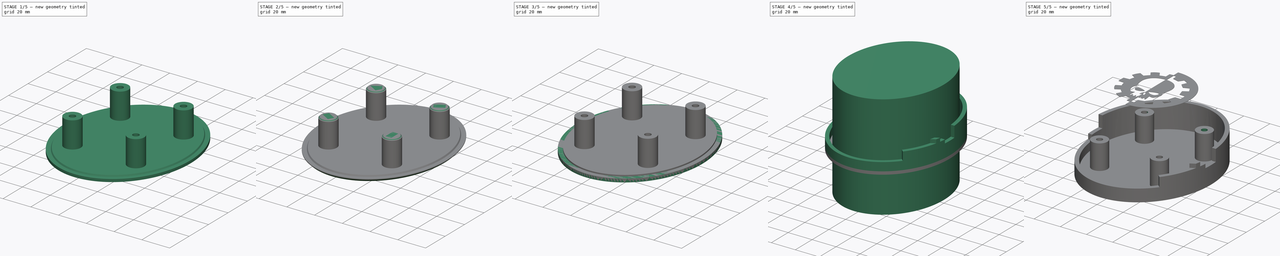
[diagram: build sequence overview — one tinted view per stage of 5, left to right]
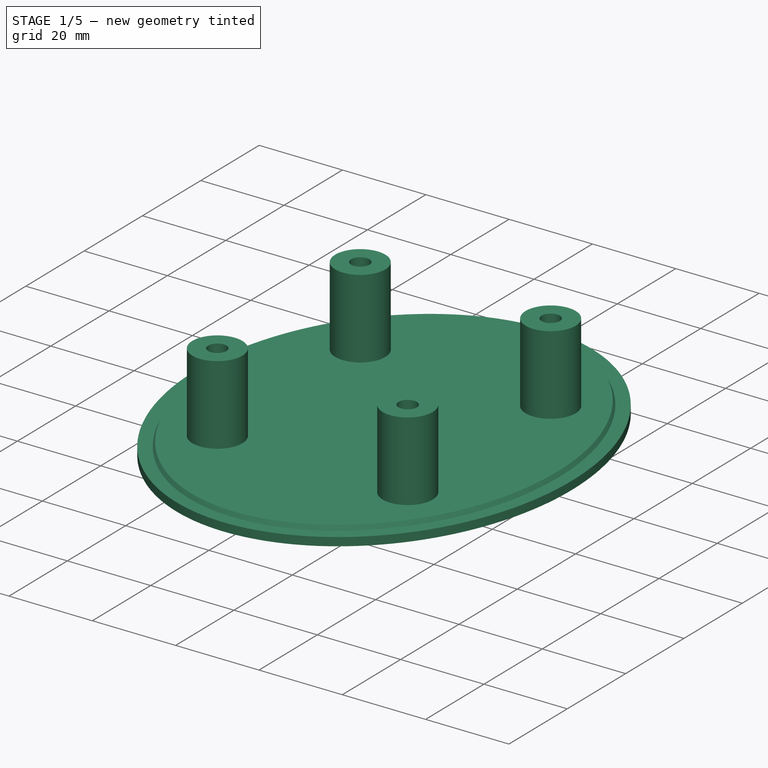
[diagram: stage 1 of 5 — iso view after this stage's code; geometry added in this stage tinted green]
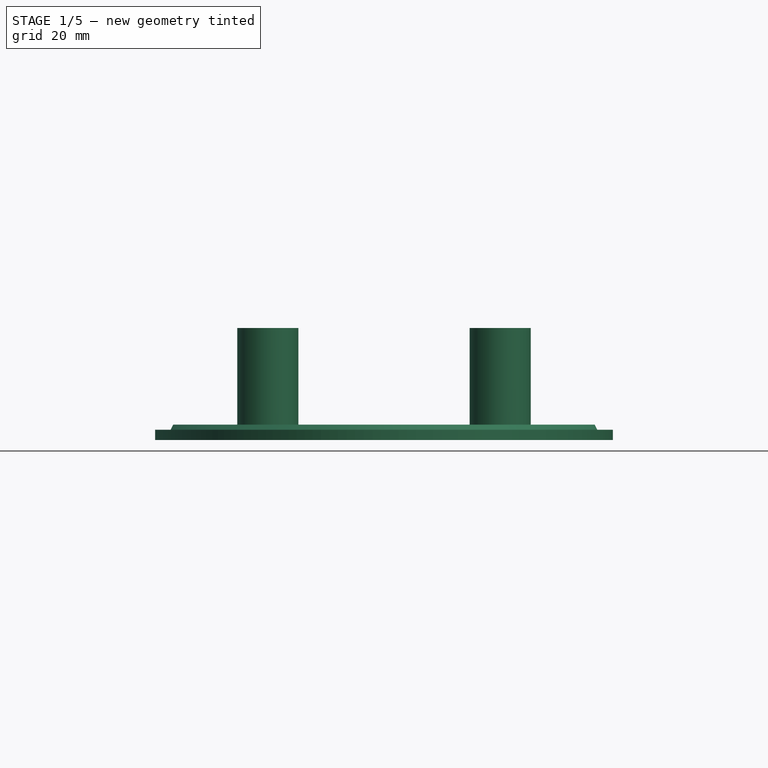
[diagram: stage 1 of 5 — front view after this stage's code; geometry added in this stage tinted green]
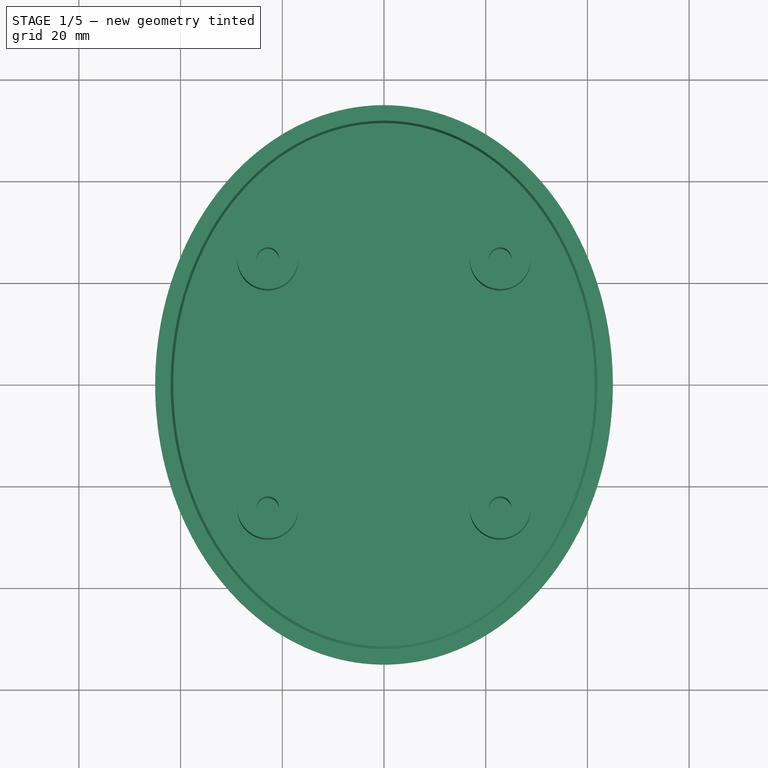
[diagram: stage 1 of 5 — top view after this stage's code; geometry added in this stage tinted green]
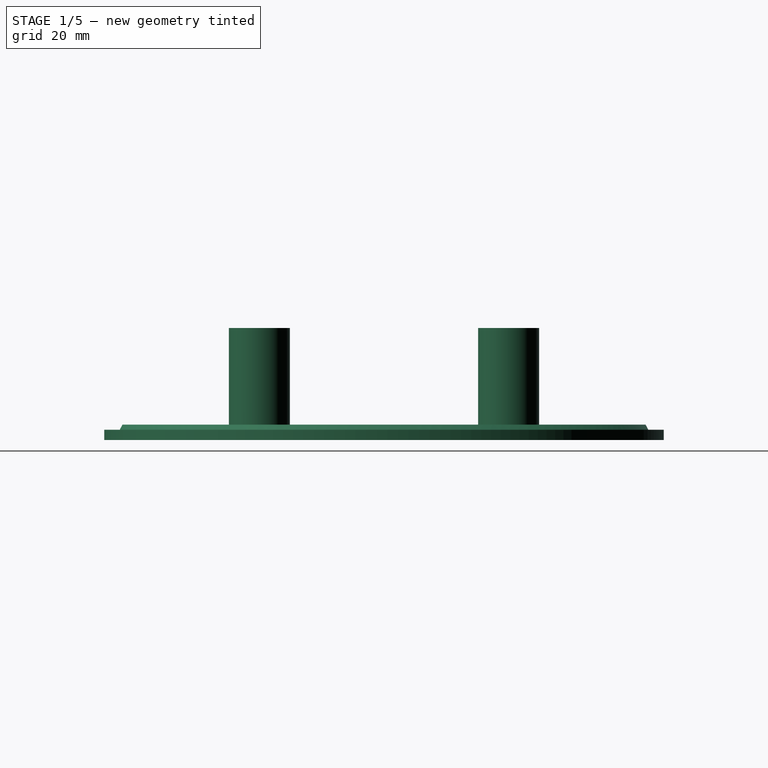
[diagram: stage 1 of 5 — right view after this stage's code; geometry added in this stage tinted green]
FCSTD DOCUMENT  (FreeCAD 1.0R39109 (Git))
Label: custom_new_shell_v4
License: All rights reserved
LicenseURL: https://en.wikipedia.org/wiki/All_rights_reserved
objects: Sketcher::SketchObject×15, PartDesign::Pad×14, PartDesign::Body×9, PartDesign::SubShapeBinder×8, Part::Refine×6, Part::Cut×5, PartDesign::Chamfer×4, PartDesign::FeatureBase×1, Part::Part2DObjectPython×1, PartDesign::Pocket×1
note: 118 computed .brp shape members not serialized (recipe doc carries the construction recipe); baked Part::Feature solids carry a one-line shape summary decoded from their .brp

FEATURE [PartDesign::SubShapeBinder] Binder009
  BindCopyOnChange = 0
  BindMode = 0
  ClaimChildren = false
  Context = -> Body005 [Binder007.]
  Fuse = false
  MakeFace = true
  OffsetFill = false
  OffsetIntersection = false
  OffsetJoinType = 0
  OffsetOpenResult = false
  PartialLoad = false
  Refine = true
  Relative = true
  _Version = 2
FEATURE [Sketcher::SketchObject] Sketch017
  ArcFitTolerance = 1e-06
  FullyConstrained = true
  MakeInternals = false
  MapMode = 5
  Placement = pos=(0,0,-52) rot=(0,0,1;0rad)
  sketch-geometry (5):
    g0: Ellipse CenterX=0 CenterY=-6.4e-15 CenterZ=0 NormalX=0 NormalY=0 NormalZ=1 MajorRadius=51.95 MinorRadius=41.95 AngleXU=-1.5708
    g1: LineSegment [constr] StartX=7.9e-15 StartY=-51.95 StartZ=0 EndX=-7.9e-15 EndY=51.95 EndZ=0
    g2: LineSegment [constr] StartX=41.95 StartY=0 StartZ=0 EndX=-41.95 EndY=-1.27e-14 EndZ=0
    g3: GeomPoint [constr] X=3.4e-15 Y=-30.6431 Z=0
    g4: GeomPoint [constr] X=-4.7e-15 Y=30.6431 Z=0
  constraints (5):
    c: InternalAlignment(g1-g4 -> g0) x4
    c: Coincident(g0,g-3)
    c: PointOnObject(g2,g-1)
    c: DistanceY(g1,g1) = 103.9
    c: DistanceX(g2,g2) = 83.9
FEATURE [PartDesign::Pad] Pad014
  Direction = (0,0,1)
  Length = 1
  Length2 = 10
  Placement = pos=(0,0,-52) rot=(0,0,1;0rad)
  Profile = -> Sketch017
  ReferenceAxis = -> Sketch017 [N_Axis]
  Refine = true
  Suppressed = false
  Type = 0
FEATURE [Sketcher::SketchObject] Sketch018
  ArcFitTolerance = 1e-06
  ExternalGeometry = -> [Binder009]
  FullyConstrained = true
  MakeInternals = false
  MapMode = 5
  Placement = pos=(0,0,-32) rot=(1,0,0;3.14159rad)
  sketch-geometry (8):
    g0: Circle CenterX=22.8469 CenterY=24.5003 CenterZ=0 NormalX=0 NormalY=0 NormalZ=1 AngleXU=0 Radius=2.2
    g1: Circle CenterX=-22.8469 CenterY=24.5003 CenterZ=0 NormalX=0 NormalY=0 NormalZ=1 AngleXU=0 Radius=2.2
    g2: Circle CenterX=-22.8469 CenterY=-24.5003 CenterZ=0 NormalX=0 NormalY=0 NormalZ=1 AngleXU=0 Radius=2.2
    g3: Circle CenterX=22.8469 CenterY=-24.5003 CenterZ=0 NormalX=0 NormalY=0 NormalZ=1 AngleXU=0 Radius=2.2
    g4: Circle CenterX=-22.8469 CenterY=24.5003 CenterZ=0 NormalX=0 NormalY=0 NormalZ=1 AngleXU=0 Radius=6
    g5: Circle CenterX=22.8469 CenterY=24.5003 CenterZ=0 NormalX=0 NormalY=0 NormalZ=1 AngleXU=0 Radius=6
    g6: Circle CenterX=22.8469 CenterY=-24.5003 CenterZ=0 NormalX=0 NormalY=0 NormalZ=1 AngleXU=0 Radius=6
    g7: Circle CenterX=-22.8469 CenterY=-24.5003 CenterZ=0 NormalX=0 NormalY=0 NormalZ=1 AngleXU=0 Radius=6
  constraints (20):
    c: PointOnObject(g-3,g0)
    c: PointOnObject(g-4,g0)
    c: PointOnObject(g-5,g0)
    c: PointOnObject(g-6,g1)
    c: PointOnObject(g-7,g1)
    c: PointOnObject(g-8,g1)
    c: PointOnObject(g-9,g2)
    c: PointOnObject(g-11,g2)
    c: PointOnObject(g-10,g2)
    c: PointOnObject(g-13,g3)
    c: PointOnObject(g-14,g3)
    c: PointOnObject(g-12,g3)
    c: Diameter(g4) = 12
    c: Coincident(g4,g1)
    c: Coincident(g5,g0)
    c: Coincident(g6,g3)
    c: Coincident(g7,g2)
    c: Equal(g4,g5)
    c: Equal(g5,g7)
    c: Equal(g7,g6)
FEATURE [PartDesign::Pad] Pad015
  BaseFeature = -> Pad014
  Direction = (0,0,-1)
  Length = 19
  Length2 = 10
  Placement = pos=(0,0,-52) rot=(0,0,1;0rad)
  Profile = -> Sketch018
  ReferenceAxis = -> Sketch018 [N_Axis]
  Refine = true
  Suppressed = false
  Type = 0
FEATURE [PartDesign::Body] Body013  label="incased_nuts001"
  AllowCompound = true
  Group = -> [Binder010,Sketch019,Pad016]
  Origin = -> Origin030
  Placement = pos=(0,0,-7) rot=(0,0,1;0rad)
  Tip = -> Pad016
FEATURE [Sketcher::SketchObject] Sketch020
  ArcFitTolerance = 1e-06
  AttachmentSupport = -> [Pad015]
  FullyConstrained = true
  MakeInternals = false
  MapMode = 5
  Placement = pos=(0,0,-52) rot=(1,0,0;3.14159rad)
  sketch-geometry (5):
    g0: Ellipse CenterX=0 CenterY=0 CenterZ=0 NormalX=0 NormalY=0 NormalZ=1 MajorRadius=55 MinorRadius=45 AngleXU=-1.5708
    g1: LineSegment [constr] StartX=-1.79737e-05 StartY=-55 StartZ=0 EndX=1.79737e-05 EndY=55 EndZ=0
    g2: LineSegment [constr] StartX=45 StartY=-1.47058e-05 StartZ=0 EndX=-45 EndY=1.47058e-05 EndZ=0
    g3: GeomPoint [constr] X=-1.03342e-05 Y=-31.6228 Z=0
    g4: GeomPoint [constr] X=1.03342e-05 Y=31.6228 Z=0
  constraints (5):
    c: InternalAlignment(g1-g4 -> g0) x4
    c: Distance(g0,g1) = 55
    c: Angle(g1) = 1.5708
    c: Distance(g0,g2) = 45
    c: Coincident(g0,g-1)
FEATURE [PartDesign::Pad] Pad017
  BaseFeature = -> Pad015
  Direction = (0,0,-1)
  Length = 2
  Length2 = 10
  Placement = pos=(0,0,-52) rot=(0,0,1;0rad)
  Profile = -> Sketch020
  ReferenceAxis = -> Sketch020 [N_Axis]
  Refine = true
  Suppressed = false
  Type = 0
FEATURE [Part::Part2DObjectPython] Clone2D  label="Sketch012 (2D)"  # Draft 2D object (typed FeaturePython)
  AttachmentSupport = -> [Pad017]
  ForceCompound = false
  Fuse = false
  MapMode = 5
  Placement = pos=(0,0,-54) rot=(1,0,0;3.14159rad)
  Scale = (1.2,1.2,1.2)
FEATURE [PartDesign::Pocket] Pocket
  BaseFeature = -> Pad017
  Direction = (0,0,1)
  Length = 2
  Length2 = 5
  Placement = pos=(0,0,-52) rot=(0,0,1;0rad)
  Profile = -> Clone2D
  ReferenceAxis = -> Clone2D [N_Axis]
  Refine = true
  Suppressed = false
  Type = 0
FEATURE [PartDesign::Chamfer] Chamfer001
  Angle = 45
  Base = -> Pocket [Edge3]
  BaseFeature = -> Pocket
  ChamferType = 1
  FlipDirection = false
  Placement = pos=(0,0,-52) rot=(0,0,1;0rad)
  Refine = true
  Size = 0.99
  Size2 = 0.5
  SupportTransform = false
  Suppressed = false
  UseAllEdges = false
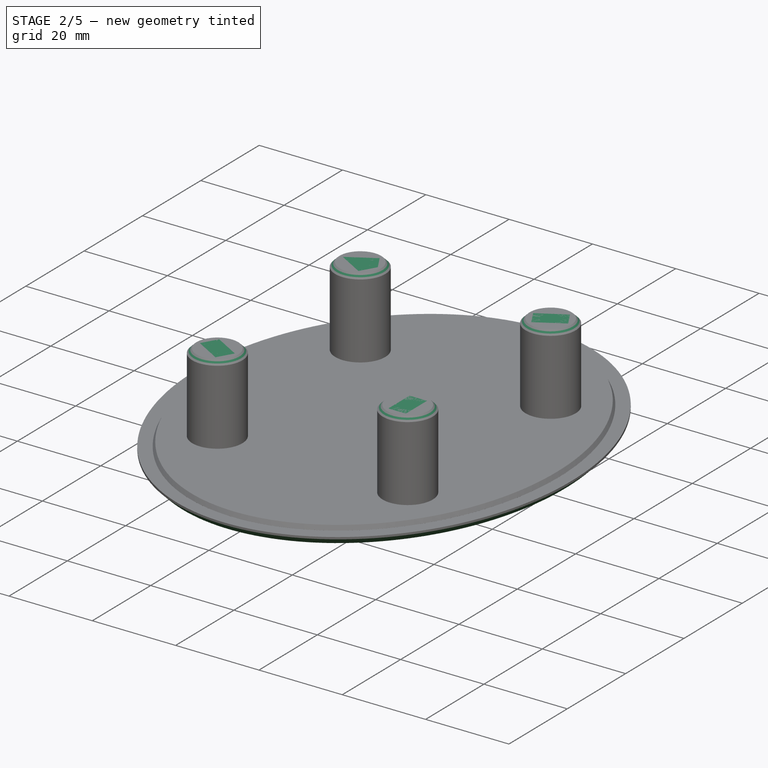
[diagram: stage 2 of 5 — iso view after this stage's code; geometry added in this stage tinted green]
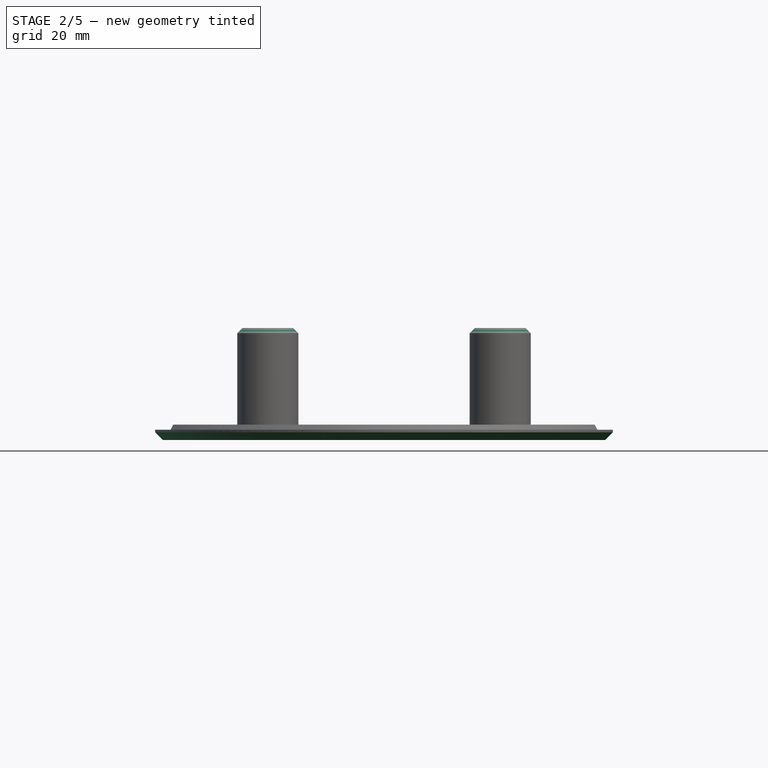
[diagram: stage 2 of 5 — front view after this stage's code; geometry added in this stage tinted green]
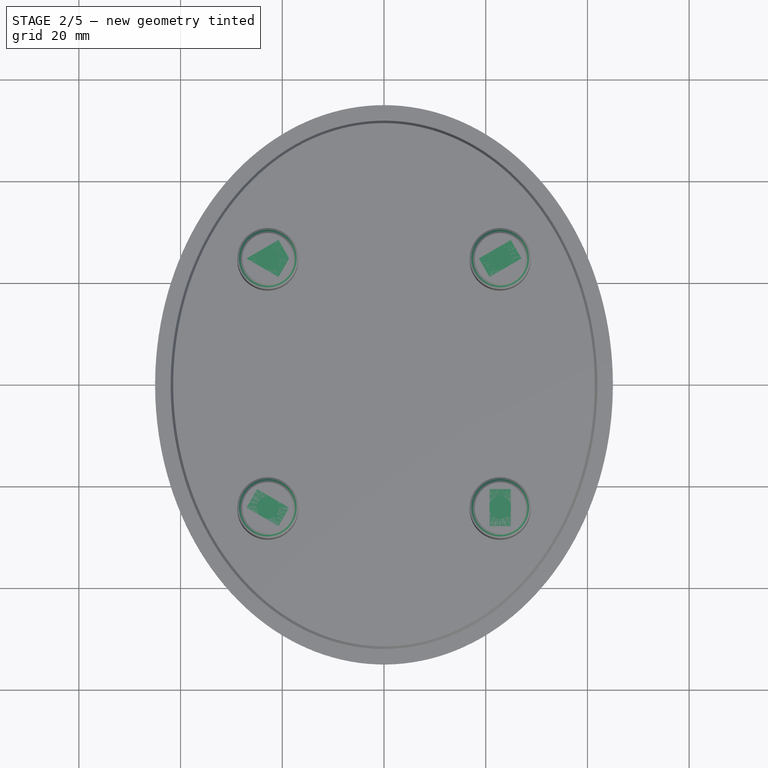
[diagram: stage 2 of 5 — top view after this stage's code; geometry added in this stage tinted green]
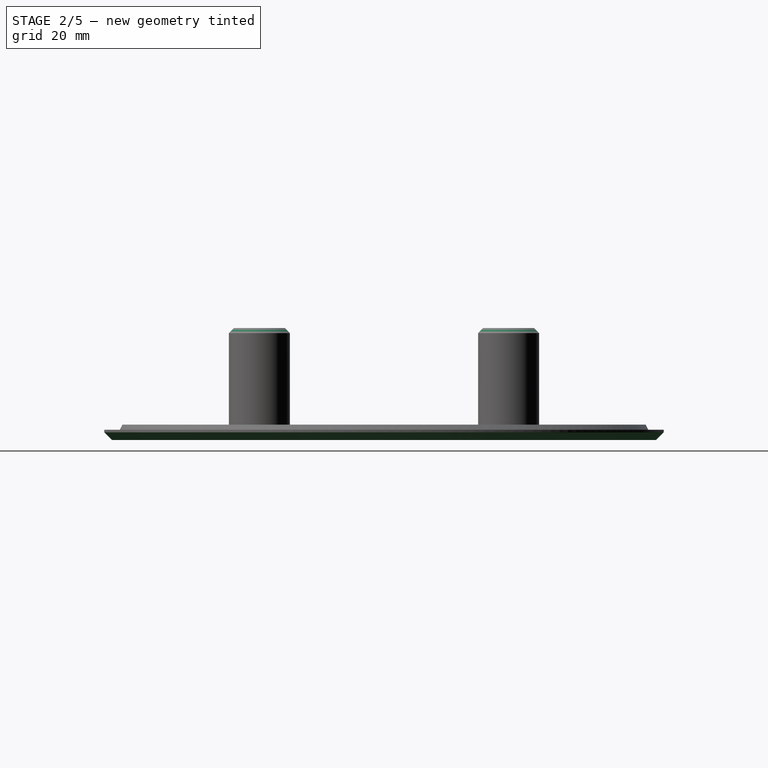
[diagram: stage 2 of 5 — right view after this stage's code; geometry added in this stage tinted green]
FEATURE [PartDesign::Body] Body010  label="shell_cap"
  AllowCompound = false
  Group = -> [BaseFeature,Sketch014,Pad011,Binder007,Sketch015,Pad012]
  Origin = -> Origin024
  Tip = -> Pad012
FEATURE [PartDesign::SubShapeBinder] Binder008
  BindCopyOnChange = 0
  BindMode = 0
  ClaimChildren = false
  Context = -> Body005 [Binder007.]
  Fuse = false
  MakeFace = true
  OffsetFill = false
  OffsetIntersection = false
  OffsetJoinType = 0
  OffsetOpenResult = false
  PartialLoad = false
  Refine = true
  Relative = true
  _Version = 2
FEATURE [Sketcher::SketchObject] Sketch016
  ArcFitTolerance = 1e-06
  ExternalGeometry = -> [Binder008]
  FullyConstrained = false
  MakeInternals = false
  MapMode = 5
  Placement = pos=(0,0,-32) rot=(1,0,0;3.14159rad)
  sketch-geometry (32):
    g0: Circle [constr] CenterX=-22.8469 CenterY=24.5003 CenterZ=0 NormalX=0 NormalY=0 NormalZ=1 AngleXU=0 Radius=2.2
    g1: Circle [constr] CenterX=22.8469 CenterY=24.5003 CenterZ=0 NormalX=0 NormalY=0 NormalZ=1 AngleXU=0 Radius=2.2
    g2: LineSegment StartX=-18.6469 StartY=24.5003 StartZ=0 EndX=-20.7469 EndY=28.1377 EndZ=0
    g3: LineSegment StartX=-20.7469 StartY=28.1377 StartZ=0 EndX=-24.9469 EndY=28.1377 EndZ=0
    g4: LineSegment StartX=-24.9469 StartY=28.1377 StartZ=0 EndX=-27.0469 EndY=24.5003 EndZ=0
    g5: LineSegment StartX=-27.0469 StartY=24.5003 StartZ=0 EndX=-24.9469 EndY=20.863 EndZ=0
    g6: LineSegment StartX=-24.9469 StartY=20.863 StartZ=0 EndX=-20.7469 EndY=20.863 EndZ=0
    g7: LineSegment StartX=-20.7469 StartY=20.863 StartZ=0 EndX=-18.6469 EndY=24.5003 EndZ=0
    g8: Circle [constr] CenterX=-22.8469 CenterY=24.5003 CenterZ=0 NormalX=0 NormalY=0 NormalZ=1 AngleXU=0 Radius=4.2
    g9: LineSegment StartX=27.0469 StartY=24.5003 StartZ=0 EndX=24.9469 EndY=28.1377 EndZ=0
    g10: LineSegment StartX=24.9469 StartY=28.1377 StartZ=0 EndX=20.7469 EndY=28.1377 EndZ=0
    g11: LineSegment StartX=20.7469 StartY=28.1377 StartZ=0 EndX=18.6469 EndY=24.5003 EndZ=0
    g12: LineSegment StartX=18.6469 StartY=24.5003 StartZ=0 EndX=20.7469 EndY=20.863 EndZ=0
    g13: LineSegment StartX=20.7469 StartY=20.863 StartZ=0 EndX=24.9469 EndY=20.863 EndZ=0
    g14: LineSegment StartX=24.9469 StartY=20.863 StartZ=0 EndX=27.0469 EndY=24.5003 EndZ=0
    g15: Circle [constr] CenterX=22.8469 CenterY=24.5003 CenterZ=0 NormalX=0 NormalY=0 NormalZ=1 AngleXU=0 Radius=4.2
    g16: Circle [constr] CenterX=-22.8469 CenterY=-24.5003 CenterZ=0 NormalX=0 NormalY=0 NormalZ=1 AngleXU=0 Radius=2.2
    g17: Circle [constr] CenterX=22.8469 CenterY=-24.5003 CenterZ=0 NormalX=0 NormalY=0 NormalZ=1 AngleXU=0 Radius=2.2
    g18: LineSegment StartX=-18.6469 StartY=-24.5003 StartZ=0 EndX=-20.7469 EndY=-20.863 EndZ=0
    g19: LineSegment StartX=-20.7469 StartY=-20.863 StartZ=0 EndX=-24.9469 EndY=-20.863 EndZ=0
    g20: LineSegment StartX=-24.9469 StartY=-20.863 StartZ=0 EndX=-27.0469 EndY=-24.5004 EndZ=0
    g21: LineSegment StartX=-27.0469 StartY=-24.5004 StartZ=0 EndX=-24.9469 EndY=-28.1377 EndZ=0
    g22: LineSegment StartX=-24.9469 StartY=-28.1377 StartZ=0 EndX=-20.7469 EndY=-28.1377 EndZ=0
    g23: LineSegment StartX=-20.7469 StartY=-28.1377 StartZ=0 EndX=-18.6469 EndY=-24.5003 EndZ=0
    g24: Circle [constr] CenterX=-22.8469 CenterY=-24.5003 CenterZ=0 NormalX=0 NormalY=0 NormalZ=1 AngleXU=0 Radius=4.2
    g25: LineSegment StartX=27.0469 StartY=-24.5004 StartZ=0 EndX=24.9469 EndY=-20.863 EndZ=0
    g26: LineSegment StartX=24.9469 StartY=-20.863 StartZ=0 EndX=20.7469 EndY=-20.863 EndZ=0
    g27: LineSegment StartX=20.7469 StartY=-20.863 StartZ=0 EndX=18.6469 EndY=-24.5003 EndZ=0
    g28: LineSegment StartX=18.6469 StartY=-24.5003 StartZ=0 EndX=20.7469 EndY=-28.1377 EndZ=0
    g29: LineSegment StartX=20.7469 StartY=-28.1377 StartZ=0 EndX=24.9469 EndY=-28.1377 EndZ=0
    g30: LineSegment StartX=24.9469 StartY=-28.1377 StartZ=0 EndX=27.0469 EndY=-24.5004 EndZ=0
    g31: Circle [constr] CenterX=22.8469 CenterY=-24.5003 CenterZ=0 NormalX=0 NormalY=0 NormalZ=1 AngleXU=0 Radius=4.2
  constraints (72):
    c: PointOnObject(g-7,g0)
    c: PointOnObject(g-8,g0)
    c: PointOnObject(g-6,g0)
    c: PointOnObject(g-5,g1)
    c: PointOnObject(g-3,g1)
    c: PointOnObject(g-4,g1)
    c: Coincident(g2,g3)
    c: Coincident(g3,g4)
    c: Coincident(g4,g5)
    c: Coincident(g5,g6)
    c: Coincident(g6,g7)
    c: Coincident(g7,g2)
    c: Equal(g2, g3-g7) x5
    c: PointOnObject(g2,g8)
    c: PointOnObject(g3,g8)
    c: PointOnObject(g4,g8)
    c: PointOnObject(g5,g8)
    c: PointOnObject(g6,g8)
    c: PointOnObject(g7,g8)
    c: Radius(g8) = 4.2
    c: Coincident(g8,g0)
    c: Coincident(g9,g10)
    c: Coincident(g10,g11)
    c: Coincident(g11,g12)
    c: Coincident(g12,g13)
    c: Coincident(g13,g14)
    c: Coincident(g14,g9)
    c: Equal(g9, g10-g14) x5
    c: PointOnObject(g9,g15)
    c: PointOnObject(g10,g15)
    c: PointOnObject(g11,g15)
    c: PointOnObject(g12,g15)
    c: PointOnObject(g13,g15)
    c: PointOnObject(g14,g15)
    c: Coincident(g15,g1)
    c: PointOnObject(g-12,g16)
    c: PointOnObject(g-13,g16)
    c: PointOnObject(g-14,g16)
    c: PointOnObject(g-9,g17)
    c: PointOnObject(g-11,g17)
    c: PointOnObject(g-10,g17)
    c: Coincident(g18,g19)
    c: Coincident(g19,g20)
    c: Coincident(g20,g21)
    c: Coincident(g21,g22)
    c: Coincident(g22,g23)
    c: Coincident(g23,g18)
    c: Equal(g18, g19-g23) x5
    c: PointOnObject(g18,g24)
    c: PointOnObject(g19,g24)
    c: PointOnObject(g20,g24)
    c: PointOnObject(g21,g24)
    c: PointOnObject(g22,g24)
    c: PointOnObject(g23,g24)
    c: Coincident(g24,g16)
    c: Coincident(g25,g26)
    c: Coincident(g26,g27)
    c: Coincident(g27,g28)
    c: Coincident(g28,g29)
    c: Coincident(g29,g30)
    c: Coincident(g30,g25)
    c: Equal(g25, g26-g30) x5
    c: PointOnObject(g25,g31)
    c: PointOnObject(g26,g31)
    c: PointOnObject(g27,g31)
    c: PointOnObject(g28,g31)
    c: PointOnObject(g29,g31)
    c: PointOnObject(g30,g31)
    c: Coincident(g31,g17)
    c: Equal(g3,g10)
    c: Equal(g10,g26)
    c: Equal(g26,g19)
FEATURE [PartDesign::Pad] Pad013
  Direction = (0,0,-1)
  Length = 4
  Length2 = 10
  Placement = pos=(0,0,-32) rot=(1,0,0;3.14159rad)
  Profile = -> Sketch016
  ReferenceAxis = -> Sketch016 [N_Axis]
  Refine = true
  Suppressed = false
  Type = 0
FEATURE [PartDesign::SubShapeBinder] Binder010
  BindCopyOnChange = 0
  BindMode = 0
  ClaimChildren = false
  Context = -> Body005 [Binder007.]
  Fuse = false
  MakeFace = true
  OffsetFill = false
  OffsetIntersection = false
  OffsetJoinType = 0
  OffsetOpenResult = false
  PartialLoad = false
  Refine = true
  Relative = true
  _Version = 2
FEATURE [Sketcher::SketchObject] Sketch019
  ArcFitTolerance = 1e-06
  ExternalGeometry = -> [Binder010]
  FullyConstrained = false
  MakeInternals = false
  MapMode = 5
  Placement = pos=(0,0,-32) rot=(1,0,0;3.14159rad)
  sketch-geometry (32):
    g0: Circle [constr] CenterX=-22.8469 CenterY=24.5003 CenterZ=0 NormalX=0 NormalY=0 NormalZ=1 AngleXU=0 Radius=2.2
    g1: Circle [constr] CenterX=22.8469 CenterY=24.5003 CenterZ=0 NormalX=0 NormalY=0 NormalZ=1 AngleXU=0 Radius=2.2
    g2: LineSegment StartX=-18.6469 StartY=24.5003 StartZ=0 EndX=-20.7469 EndY=28.1377 EndZ=0
    g3: LineSegment StartX=-20.7469 StartY=28.1377 StartZ=0 EndX=-24.9469 EndY=28.1377 EndZ=0
    g4: LineSegment StartX=-24.9469 StartY=28.1377 StartZ=0 EndX=-27.0469 EndY=24.5003 EndZ=0
    g5: LineSegment StartX=-27.0469 StartY=24.5003 StartZ=0 EndX=-24.9469 EndY=20.863 EndZ=0
    g6: LineSegment StartX=-24.9469 StartY=20.863 StartZ=0 EndX=-20.7469 EndY=20.863 EndZ=0
    g7: LineSegment StartX=-20.7469 StartY=20.863 StartZ=0 EndX=-18.6469 EndY=24.5003 EndZ=0
    g8: Circle [constr] CenterX=-22.8469 CenterY=24.5003 CenterZ=0 NormalX=0 NormalY=0 NormalZ=1 AngleXU=0 Radius=4.2
    g9: LineSegment StartX=27.0469 StartY=24.5003 StartZ=0 EndX=24.9469 EndY=28.1377 EndZ=0
    g10: LineSegment StartX=24.9469 StartY=28.1377 StartZ=0 EndX=20.7469 EndY=28.1377 EndZ=0
    g11: LineSegment StartX=20.7469 StartY=28.1377 StartZ=0 EndX=18.6469 EndY=24.5003 EndZ=0
    g12: LineSegment StartX=18.6469 StartY=24.5003 StartZ=0 EndX=20.7469 EndY=20.863 EndZ=0
    g13: LineSegment StartX=20.7469 StartY=20.863 StartZ=0 EndX=24.9469 EndY=20.863 EndZ=0
    g14: LineSegment StartX=24.9469 StartY=20.863 StartZ=0 EndX=27.0469 EndY=24.5003 EndZ=0
    g15: Circle [constr] CenterX=22.8469 CenterY=24.5003 CenterZ=0 NormalX=0 NormalY=0 NormalZ=1 AngleXU=0 Radius=4.2
    g16: Circle [constr] CenterX=-22.8469 CenterY=-24.5003 CenterZ=0 NormalX=0 NormalY=0 NormalZ=1 AngleXU=0 Radius=2.2
    g17: Circle [constr] CenterX=22.8469 CenterY=-24.5003 CenterZ=0 NormalX=0 NormalY=0 NormalZ=1 AngleXU=0 Radius=2.2
    g18: LineSegment StartX=-18.6469 StartY=-24.5003 StartZ=0 EndX=-20.7469 EndY=-20.863 EndZ=0
    g19: LineSegment StartX=-20.7469 StartY=-20.863 StartZ=0 EndX=-24.9469 EndY=-20.863 EndZ=0
    g20: LineSegment StartX=-24.9469 StartY=-20.863 StartZ=0 EndX=-27.0469 EndY=-24.5004 EndZ=0
    g21: LineSegment StartX=-27.0469 StartY=-24.5004 StartZ=0 EndX=-24.9469 EndY=-28.1377 EndZ=0
    g22: LineSegment StartX=-24.9469 StartY=-28.1377 StartZ=0 EndX=-20.7469 EndY=-28.1377 EndZ=0
    g23: LineSegment StartX=-20.7469 StartY=-28.1377 StartZ=0 EndX=-18.6469 EndY=-24.5003 EndZ=0
    g24: Circle [constr] CenterX=-22.8469 CenterY=-24.5003 CenterZ=0 NormalX=0 NormalY=0 NormalZ=1 AngleXU=0 Radius=4.2
    g25: LineSegment StartX=27.0469 StartY=-24.5004 StartZ=0 EndX=24.9469 EndY=-20.863 EndZ=0
    g26: LineSegment StartX=24.9469 StartY=-20.863 StartZ=0 EndX=20.7469 EndY=-20.863 EndZ=0
    g27: LineSegment StartX=20.7469 StartY=-20.863 StartZ=0 EndX=18.6469 EndY=-24.5003 EndZ=0
    g28: LineSegment StartX=18.6469 StartY=-24.5003 StartZ=0 EndX=20.7469 EndY=-28.1377 EndZ=0
    g29: LineSegment StartX=20.7469 StartY=-28.1377 StartZ=0 EndX=24.9469 EndY=-28.1377 EndZ=0
    g30: LineSegment StartX=24.9469 StartY=-28.1377 StartZ=0 EndX=27.0469 EndY=-24.5004 EndZ=0
    g31: Circle [constr] CenterX=22.8469 CenterY=-24.5003 CenterZ=0 NormalX=0 NormalY=0 NormalZ=1 AngleXU=0 Radius=4.2
  constraints (72):
    c: PointOnObject(g-7,g0)
    c: PointOnObject(g-8,g0)
    c: PointOnObject(g-6,g0)
    c: PointOnObject(g-5,g1)
    c: PointOnObject(g-3,g1)
    c: PointOnObject(g-4,g1)
    c: Coincident(g2,g3)
    c: Coincident(g3,g4)
    c: Coincident(g4,g5)
    c: Coincident(g5,g6)
    c: Coincident(g6,g7)
    c: Coincident(g7,g2)
    c: Equal(g2, g3-g7) x5
    c: PointOnObject(g2,g8)
    c: PointOnObject(g3,g8)
    c: PointOnObject(g4,g8)
    c: PointOnObject(g5,g8)
    c: PointOnObject(g6,g8)
    c: PointOnObject(g7,g8)
    c: Radius(g8) = 4.2
    c: Coincident(g8,g0)
    c: Coincident(g9,g10)
    c: Coincident(g10,g11)
    c: Coincident(g11,g12)
    c: Coincident(g12,g13)
    c: Coincident(g13,g14)
    c: Coincident(g14,g9)
    c: Equal(g9, g10-g14) x5
    c: PointOnObject(g9,g15)
    c: PointOnObject(g10,g15)
    c: PointOnObject(g11,g15)
    c: PointOnObject(g12,g15)
    c: PointOnObject(g13,g15)
    c: PointOnObject(g14,g15)
    c: Coincident(g15,g1)
    c: PointOnObject(g-12,g16)
    c: PointOnObject(g-13,g16)
    c: PointOnObject(g-14,g16)
    c: PointOnObject(g-9,g17)
    c: PointOnObject(g-11,g17)
    c: PointOnObject(g-10,g17)
    c: Coincident(g18,g19)
    c: Coincident(g19,g20)
    c: Coincident(g20,g21)
    c: Coincident(g21,g22)
    c: Coincident(g22,g23)
    c: Coincident(g23,g18)
    c: Equal(g18, g19-g23) x5
    c: PointOnObject(g18,g24)
    c: PointOnObject(g19,g24)
    c: PointOnObject(g20,g24)
    c: PointOnObject(g21,g24)
    c: PointOnObject(g22,g24)
    c: PointOnObject(g23,g24)
    c: Coincident(g24,g16)
    c: Coincident(g25,g26)
    c: Coincident(g26,g27)
    c: Coincident(g27,g28)
    c: Coincident(g28,g29)
    c: Coincident(g29,g30)
    c: Coincident(g30,g25)
    c: Equal(g25, g26-g30) x5
    c: PointOnObject(g25,g31)
    c: PointOnObject(g26,g31)
    c: PointOnObject(g27,g31)
    c: PointOnObject(g28,g31)
    c: PointOnObject(g29,g31)
    c: PointOnObject(g30,g31)
    c: Coincident(g31,g17)
    c: Equal(g3,g10)
    c: Equal(g10,g26)
    c: Equal(g26,g19)
FEATURE [PartDesign::Pad] Pad016
  Direction = (0,0,-1)
  Length = 4
  Length2 = 10
  Placement = pos=(0,0,-32) rot=(1,0,0;3.14159rad)
  Profile = -> Sketch019
  ReferenceAxis = -> Sketch019 [N_Axis]
  Refine = true
  Suppressed = false
  Type = 0
FEATURE [PartDesign::Chamfer] Chamfer002
  Angle = 45
  Base = -> Chamfer001 [Edge14,Edge18,Edge20,Edge16]
  BaseFeature = -> Chamfer001
  ChamferType = 0
  FlipDirection = false
  Placement = pos=(0,0,-52) rot=(0,0,1;0rad)
  Refine = true
  Size = 1
  Size2 = 1
  SupportTransform = false
  Suppressed = false
  UseAllEdges = false
FEATURE [PartDesign::Chamfer] Chamfer003
  Angle = 45
  Base = -> Chamfer002 [Edge34]
  BaseFeature = -> Chamfer002
  ChamferType = 0
  FlipDirection = false
  Placement = pos=(0,0,-52) rot=(0,0,1;0rad)
  Refine = true
  Size = 1.5
  Size2 = 1
  SupportTransform = false
  Suppressed = false
  UseAllEdges = false
FEATURE [PartDesign::Body] Body012  label="shell_cap001"
  AllowCompound = false
  Group = -> [Sketch017,Pad014,Binder009,Sketch018,Pad015,Sketch020,Pad017,Clone2D,Pocket,Chamfer001,Chamfer002,Chamfer003]
  Origin = -> Origin028
  Tip = -> Chamfer003
FEATURE [Part::Cut] Cut005  label="shell-cap"
  Base = -> Body012
  Tool = -> Body013
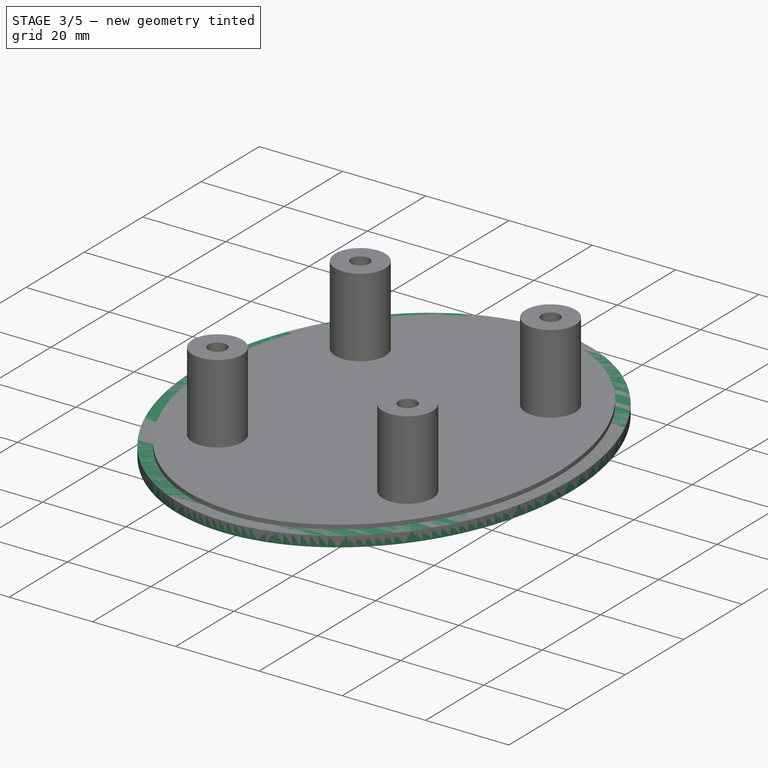
[diagram: stage 3 of 5 — iso view after this stage's code; geometry added in this stage tinted green]
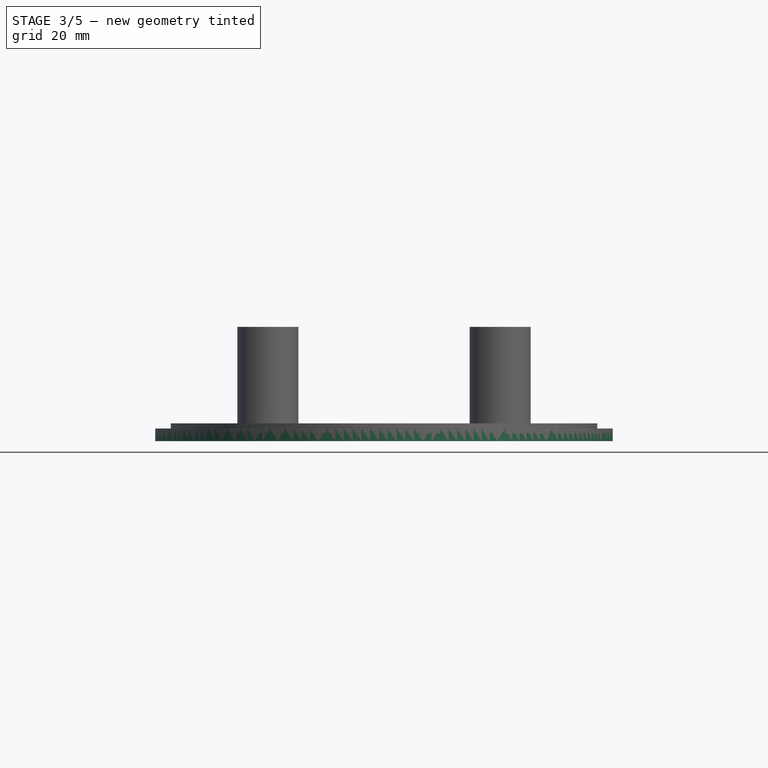
[diagram: stage 3 of 5 — front view after this stage's code; geometry added in this stage tinted green]
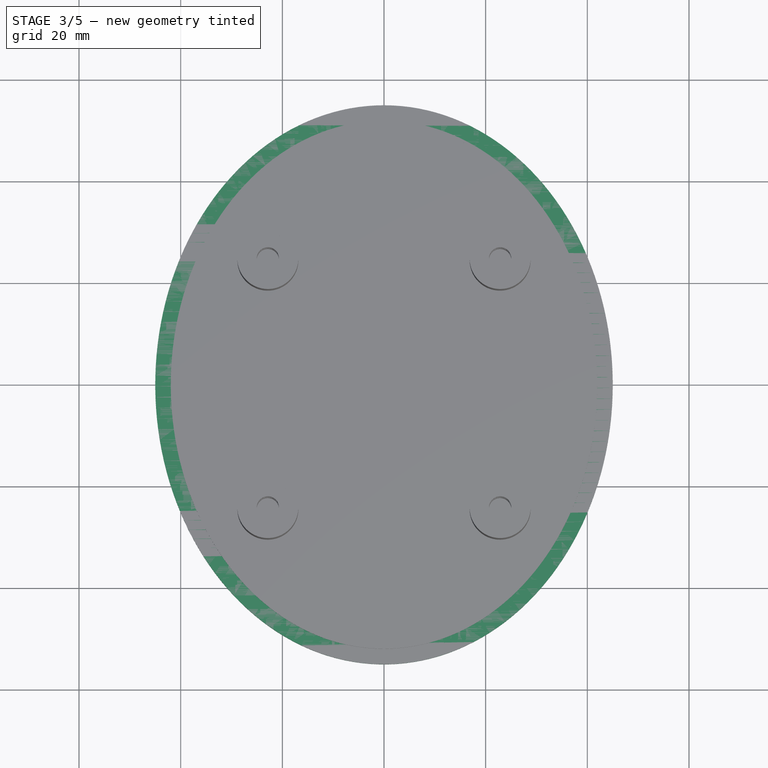
[diagram: stage 3 of 5 — top view after this stage's code; geometry added in this stage tinted green]
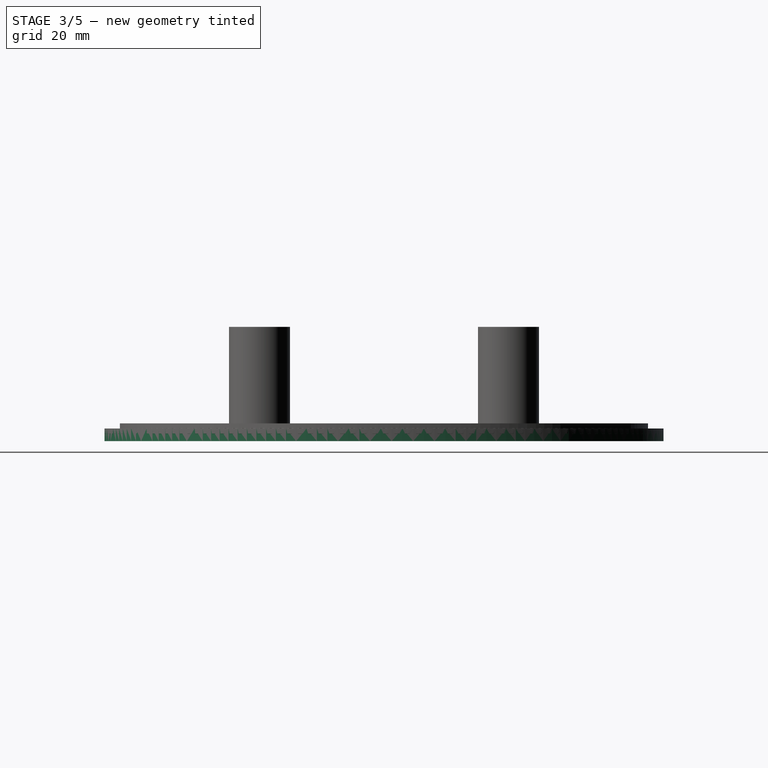
[diagram: stage 3 of 5 — right view after this stage's code; geometry added in this stage tinted green]
FEATURE [Sketcher::SketchObject] Sketch011
  ArcFitTolerance = 1e-06
  FullyConstrained = true
  MakeInternals = false
  MapMode = 5
  Placement = pos=(0,0,-52) rot=(1,0,0;3.14159rad)
  sketch-geometry (5):
    g0: Ellipse CenterX=0 CenterY=0 CenterZ=0 NormalX=0 NormalY=0 NormalZ=1 MajorRadius=55 MinorRadius=45 AngleXU=-1.5708
    g1: LineSegment [constr] StartX=0 StartY=-55 StartZ=0 EndX=0 EndY=55 EndZ=0
    g2: LineSegment [constr] StartX=45 StartY=0 StartZ=0 EndX=-45 EndY=0 EndZ=0
    g3: GeomPoint [constr] X=0 Y=-31.6228 Z=0
    g4: GeomPoint [constr] X=0 Y=31.6228 Z=0
  constraints (5):
    c: InternalAlignment(g1-g4 -> g0) x4
    c: PointOnObject(g2,g-1)
    c: Coincident(g0,g-1)
    c: DistanceX(g2,g2) = 90
    c: DistanceY(g1,g1) = 110
FEATURE [PartDesign::Pad] Pad009  label="cap"
  Direction = (0,0,-1)
  Length = 2.5
  Length2 = 10
  Placement = pos=(0,0,-52) rot=(1,0,0;3.14159rad)
  Profile = -> Sketch011
  ReferenceAxis = -> Sketch011 [N_Axis]
  Refine = true
  Suppressed = false
  Type = 0
FEATURE [PartDesign::FeatureBase] BaseFeature
  Suppressed = false
FEATURE [Sketcher::SketchObject] Sketch014
  ArcFitTolerance = 1e-06
  AttachmentSupport = -> [BaseFeature]
  ExternalGeometry = -> [BaseFeature]
  FullyConstrained = true
  MakeInternals = false
  MapMode = 5
  Placement = pos=(0,0,-52) rot=(0,0,1;0rad)
  sketch-geometry (5):
    g0: Ellipse CenterX=0 CenterY=-6.4e-15 CenterZ=0 NormalX=0 NormalY=0 NormalZ=1 MajorRadius=51.95 MinorRadius=41.95 AngleXU=-1.5708
    g1: LineSegment [constr] StartX=7.9e-15 StartY=-51.95 StartZ=0 EndX=-7.9e-15 EndY=51.95 EndZ=0
    g2: LineSegment [constr] StartX=41.95 StartY=0 StartZ=0 EndX=-41.95 EndY=-1.27e-14 EndZ=0
    g3: GeomPoint [constr] X=3.4e-15 Y=-30.6431 Z=0
    g4: GeomPoint [constr] X=-4.7e-15 Y=30.6431 Z=0
  constraints (5):
    c: InternalAlignment(g1-g4 -> g0) x4
    c: Coincident(g0,g-3)
    c: PointOnObject(g2,g-1)
    c: DistanceY(g1,g1) = 103.9
    c: DistanceX(g2,g2) = 83.9
FEATURE [PartDesign::Pad] Pad011
  BaseFeature = -> BaseFeature
  Direction = (0,0,1)
  Length = 1
  Length2 = 10
  Profile = -> Sketch014
  ReferenceAxis = -> Sketch014 [N_Axis]
  Refine = true
  Suppressed = false
  Type = 0
FEATURE [PartDesign::SubShapeBinder] Binder007
  BindCopyOnChange = 0
  BindMode = 0
  ClaimChildren = false
  Context = -> Body005 [Binder007.]
  Fuse = false
  MakeFace = true
  OffsetFill = false
  OffsetIntersection = false
  OffsetJoinType = 0
  OffsetOpenResult = false
  PartialLoad = false
  Refine = true
  Relative = true
  _Version = 2
FEATURE [Sketcher::SketchObject] Sketch015
  ArcFitTolerance = 1e-06
  ExternalGeometry = -> [Binder007]
  FullyConstrained = true
  MakeInternals = false
  MapMode = 5
  Placement = pos=(0,0,-32) rot=(1,0,0;3.14159rad)
  sketch-geometry (8):
    g0: Circle CenterX=22.8469 CenterY=24.5003 CenterZ=0 NormalX=0 NormalY=0 NormalZ=1 AngleXU=0 Radius=2.2
    g1: Circle CenterX=-22.8469 CenterY=24.5003 CenterZ=0 NormalX=0 NormalY=0 NormalZ=1 AngleXU=0 Radius=2.2
    g2: Circle CenterX=-22.8469 CenterY=-24.5003 CenterZ=0 NormalX=0 NormalY=0 NormalZ=1 AngleXU=0 Radius=2.2
    g3: Circle CenterX=22.8469 CenterY=-24.5003 CenterZ=0 NormalX=0 NormalY=0 NormalZ=1 AngleXU=0 Radius=2.2
    g4: Circle CenterX=-22.8469 CenterY=24.5003 CenterZ=0 NormalX=0 NormalY=0 NormalZ=1 AngleXU=0 Radius=6
    g5: Circle CenterX=22.8469 CenterY=24.5003 CenterZ=0 NormalX=0 NormalY=0 NormalZ=1 AngleXU=0 Radius=6
    g6: Circle CenterX=22.8469 CenterY=-24.5003 CenterZ=0 NormalX=0 NormalY=0 NormalZ=1 AngleXU=0 Radius=6
    g7: Circle CenterX=-22.8469 CenterY=-24.5003 CenterZ=0 NormalX=0 NormalY=0 NormalZ=1 AngleXU=0 Radius=6
  constraints (20):
    c: PointOnObject(g-3,g0)
    c: PointOnObject(g-4,g0)
    c: PointOnObject(g-5,g0)
    c: PointOnObject(g-6,g1)
    c: PointOnObject(g-7,g1)
    c: PointOnObject(g-8,g1)
    c: PointOnObject(g-9,g2)
    c: PointOnObject(g-11,g2)
    c: PointOnObject(g-10,g2)
    c: PointOnObject(g-13,g3)
    c: PointOnObject(g-14,g3)
    c: PointOnObject(g-12,g3)
    c: Diameter(g4) = 12
    c: Coincident(g4,g1)
    c: Coincident(g5,g0)
    c: Coincident(g6,g3)
    c: Coincident(g7,g2)
    c: Equal(g4,g5)
    c: Equal(g5,g7)
    c: Equal(g7,g6)
FEATURE [PartDesign::Pad] Pad012
  BaseFeature = -> Pad011
  Direction = (0,0,-1)
  Length = 19
  Length2 = 10
  Profile = -> Sketch015
  ReferenceAxis = -> Sketch015 [N_Axis]
  Refine = true
  Suppressed = false
  Type = 3
  UpToFace = -> Pad011 [Face43]
FEATURE [PartDesign::Body] Body011  label="incased_nuts"
  AllowCompound = true
  Group = -> [Binder008,Sketch016,Pad013]
  Origin = -> Origin026
  Placement = pos=(0,0,-7) rot=(0,0,1;0rad)
  Tip = -> Pad013
FEATURE [Part::Cut] Cut004
  Base = -> Body010
  Refine = true
  Tool = -> Body011
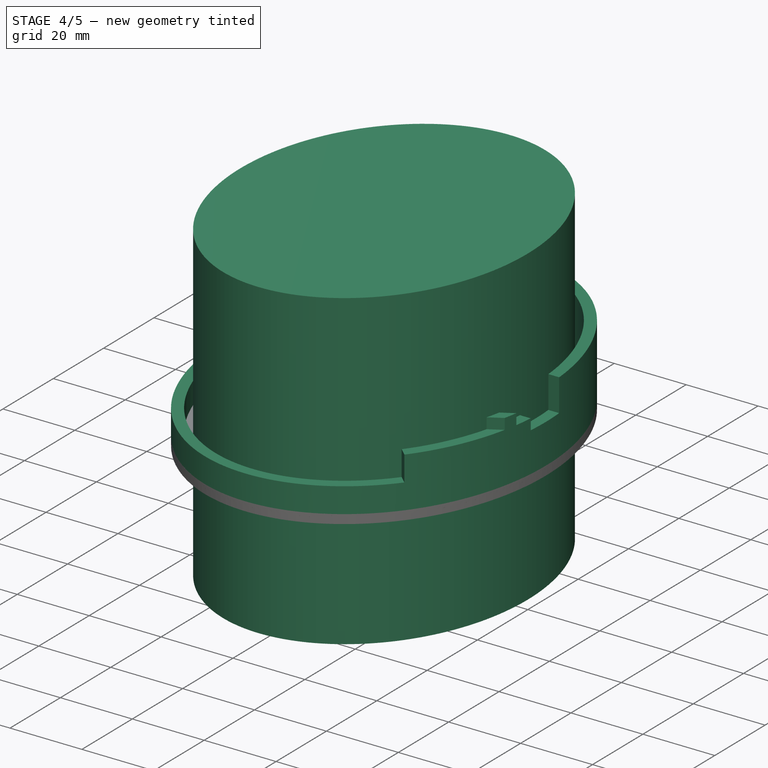
[diagram: stage 4 of 5 — iso view after this stage's code; geometry added in this stage tinted green]
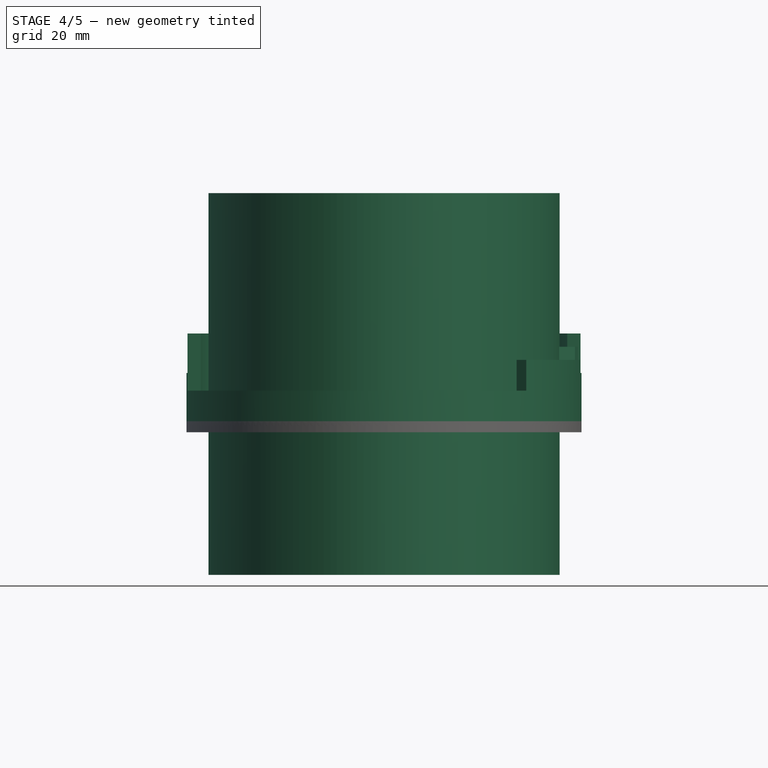
[diagram: stage 4 of 5 — front view after this stage's code; geometry added in this stage tinted green]
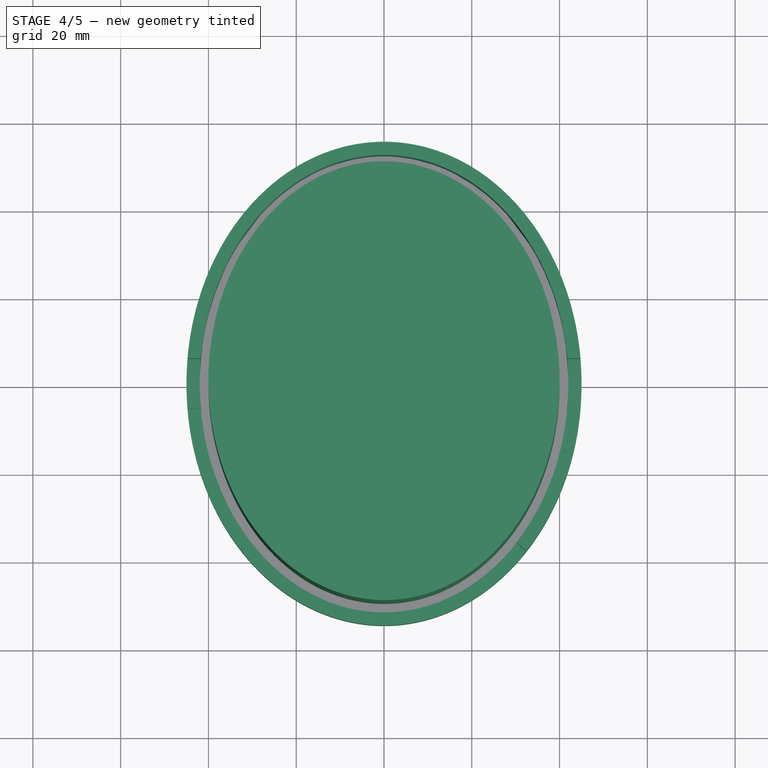
[diagram: stage 4 of 5 — top view after this stage's code; geometry added in this stage tinted green]
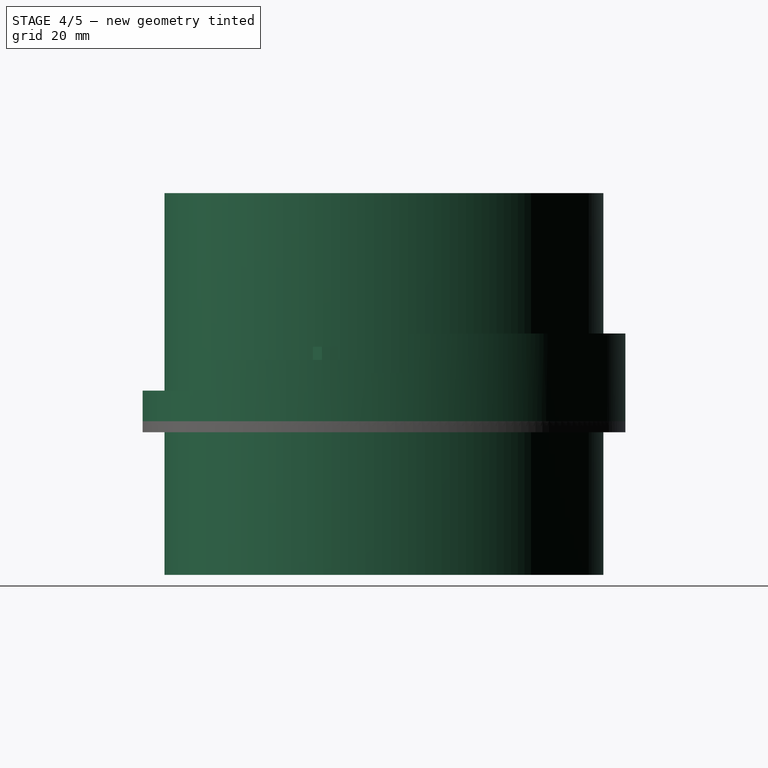
[diagram: stage 4 of 5 — right view after this stage's code; geometry added in this stage tinted green]
FEATURE [Part::Refine] Closed_Shell_Left001_solid001  label="colsed_shell_original"
  Placement = pos=(0,0,-34) rot=(0,0,1;0rad)
FEATURE [PartDesign::Body] Body  label="adeptus_mecanicus"
  AllowCompound = true
  Group = -> [Sketch001,Pad]
  Origin = -> Origin
  Placement = pos=(0,0,-54) rot=(0,0,1;0rad)
  Tip = -> Pad
FEATURE [Sketcher::SketchObject] Sketch002  label="adeptus_mecanicus_sketch"
  ArcFitTolerance = 1e-06
  FullyConstrained = false
  MakeInternals = false
  Placement = pos=(0,0,0) rot=(0,0,-1;3.14159rad)
  sketch-geometry (143):
    g0: BSplineCurve PolesCount=4 KnotsCount=2 Degree=3 IsPeriodic=0
    g1: BSplineCurve PolesCount=4 KnotsCount=2 Degree=3 IsPeriodic=0
    g2: BSplineCurve PolesCount=4 KnotsCount=2 Degree=3 IsPeriodic=0
    g3: BSplineCurve PolesCount=4 KnotsCount=2 Degree=3 IsPeriodic=0
    g4: BSplineCurve PolesCount=4 KnotsCount=2 Degree=3 IsPeriodic=0
    g5: BSplineCurve PolesCount=4 KnotsCount=2 Degree=3 IsPeriodic=0
    g6: BSplineCurve PolesCount=4 KnotsCount=2 Degree=3 IsPeriodic=0
    g7: BSplineCurve PolesCount=4 KnotsCount=2 Degree=3 IsPeriodic=0
    g8: BSplineCurve PolesCount=4 KnotsCount=2 Degree=3 IsPeriodic=0
    g9: BSplineCurve PolesCount=4 KnotsCount=2 Degree=3 IsPeriodic=0
    g10: BSplineCurve PolesCount=4 KnotsCount=2 Degree=3 IsPeriodic=0
    g11: BSplineCurve PolesCount=4 KnotsCount=2 Degree=3 IsPeriodic=0
    g12: BSplineCurve PolesCount=2 KnotsCount=2 Degree=1 IsPeriodic=0
    g13: BSplineCurve PolesCount=4 KnotsCount=2 Degree=3 IsPeriodic=0
    g14: BSplineCurve PolesCount=4 KnotsCount=2 Degree=3 IsPeriodic=0
    g15: BSplineCurve PolesCount=4 KnotsCount=2 Degree=3 IsPeriodic=0
    g16: BSplineCurve PolesCount=4 KnotsCount=2 Degree=3 IsPeriodic=0
    g17: BSplineCurve PolesCount=2 KnotsCount=2 Degree=1 IsPeriodic=0
    g18: BSplineCurve PolesCount=4 KnotsCount=2 Degree=3 IsPeriodic=0
    g19: BSplineCurve PolesCount=2 KnotsCount=2 Degree=1 IsPeriodic=0
    g20: BSplineCurve PolesCount=4 KnotsCount=2 Degree=3 IsPeriodic=0
    g21: BSplineCurve PolesCount=2 KnotsCount=2 Degree=1 IsPeriodic=0
    g22: BSplineCurve PolesCount=2 KnotsCount=2 Degree=1 IsPeriodic=0
    g23: BSplineCurve PolesCount=4 KnotsCount=2 Degree=3 IsPeriodic=0
    g24: BSplineCurve PolesCount=4 KnotsCount=2 Degree=3 IsPeriodic=0
    g25: BSplineCurve PolesCount=2 KnotsCount=2 Degree=1 IsPeriodic=0
    g26: BSplineCurve PolesCount=4 KnotsCount=2 Degree=3 IsPeriodic=0
    g27: BSplineCurve PolesCount=4 KnotsCount=2 Degree=3 IsPeriodic=0
    g28: BSplineCurve PolesCount=2 KnotsCount=2 Degree=1 IsPeriodic=0
    g29: BSplineCurve PolesCount=4 KnotsCount=2 Degree=3 IsPeriodic=0
    g30: BSplineCurve PolesCount=4 KnotsCount=2 Degree=3 IsPeriodic=0
    g31: BSplineCurve PolesCount=12 KnotsCount=10 Degree=3 IsPeriodic=0
    g32: BSplineCurve PolesCount=4 KnotsCount=2 Degree=3 IsPeriodic=0
    g33: BSplineCurve PolesCount=4 KnotsCount=2 Degree=3 IsPeriodic=0
    g34: BSplineCurve PolesCount=4 KnotsCount=2 Degree=3 IsPeriodic=0
    g35: BSplineCurve PolesCount=2 KnotsCount=2 Degree=1 IsPeriodic=0
    g36: BSplineCurve PolesCount=4 KnotsCount=2 Degree=3 IsPeriodic=0
    g37: BSplineCurve PolesCount=4 KnotsCount=2 Degree=3 IsPeriodic=0
    g38: BSplineCurve PolesCount=2 KnotsCount=2 Degree=1 IsPeriodic=0
    g39: BSplineCurve PolesCount=4 KnotsCount=2 Degree=3 IsPeriodic=0
    g40: BSplineCurve PolesCount=4 KnotsCount=2 Degree=3 IsPeriodic=0
    g41: BSplineCurve PolesCount=4 KnotsCount=2 Degree=3 IsPeriodic=0
    g42: BSplineCurve PolesCount=2 KnotsCount=2 Degree=1 IsPeriodic=0
    g43: BSplineCurve PolesCount=4 KnotsCount=2 Degree=3 IsPeriodic=0
    g44: BSplineCurve PolesCount=4 KnotsCount=2 Degree=3 IsPeriodic=0
    g45: BSplineCurve PolesCount=2 KnotsCount=2 Degree=1 IsPeriodic=0
    g46: BSplineCurve PolesCount=4 KnotsCount=2 Degree=3 IsPeriodic=0
    g47: BSplineCurve PolesCount=4 KnotsCount=2 Degree=3 IsPeriodic=0
    g48: BSplineCurve PolesCount=2 KnotsCount=2 Degree=1 IsPeriodic=0
    g49: BSplineCurve PolesCount=4 KnotsCount=2 Degree=3 IsPeriodic=0
    g50: BSplineCurve PolesCount=4 KnotsCount=2 Degree=3 IsPeriodic=0
    g51: BSplineCurve PolesCount=4 KnotsCount=2 Degree=3 IsPeriodic=0
    g52: BSplineCurve PolesCount=4 KnotsCount=2 Degree=3 IsPeriodic=0
    g53: BSplineCurve PolesCount=4 KnotsCount=2 Degree=3 IsPeriodic=0
    g54: BSplineCurve PolesCount=4 KnotsCount=2 Degree=3 IsPeriodic=0
    g55: BSplineCurve PolesCount=4 KnotsCount=2 Degree=3 IsPeriodic=0
    g56: BSplineCurve PolesCount=4 KnotsCount=2 Degree=3 IsPeriodic=0
    g57: BSplineCurve PolesCount=4 KnotsCount=2 Degree=3 IsPeriodic=0
    g58: BSplineCurve PolesCount=4 KnotsCount=2 Degree=3 IsPeriodic=0
    g59: BSplineCurve PolesCount=4 KnotsCount=2 Degree=3 IsPeriodic=0
    g60: BSplineCurve PolesCount=4 KnotsCount=2 Degree=3 IsPeriodic=0
    g61: BSplineCurve PolesCount=4 KnotsCount=2 Degree=3 IsPeriodic=0
    g62: BSplineCurve PolesCount=4 KnotsCount=2 Degree=3 IsPeriodic=0
    g63: BSplineCurve PolesCount=4 KnotsCount=2 Degree=3 IsPeriodic=0
    g64: BSplineCurve PolesCount=4 KnotsCount=2 Degree=3 IsPeriodic=0
    g65: BSplineCurve PolesCount=2 KnotsCount=2 Degree=1 IsPeriodic=0
    g66: BSplineCurve PolesCount=2 KnotsCount=2 Degree=1 IsPeriodic=0
    g67: BSplineCurve PolesCount=4 KnotsCount=2 Degree=3 IsPeriodic=0
    g68: BSplineCurve PolesCount=4 KnotsCount=2 Degree=3 IsPeriodic=0
    g69: BSplineCurve PolesCount=4 KnotsCount=2 Degree=3 IsPeriodic=0
    g70: BSplineCurve PolesCount=4 KnotsCount=2 Degree=3 IsPeriodic=0
    g71: BSplineCurve PolesCount=4 KnotsCount=2 Degree=3 IsPeriodic=0
    g72: BSplineCurve PolesCount=4 KnotsCount=2 Degree=3 IsPeriodic=0
    g73: BSplineCurve PolesCount=4 KnotsCount=2 Degree=3 IsPeriodic=0
    g74: BSplineCurve PolesCount=4 KnotsCount=2 Degree=3 IsPeriodic=0
    g75: BSplineCurve PolesCount=4 KnotsCount=2 Degree=3 IsPeriodic=0
    g76: BSplineCurve PolesCount=4 KnotsCount=2 Degree=3 IsPeriodic=0
    g77: BSplineCurve PolesCount=2 KnotsCount=2 Degree=1 IsPeriodic=0
    g78: BSplineCurve PolesCount=2 KnotsCount=2 Degree=1 IsPeriodic=0
    g79: BSplineCurve PolesCount=4 KnotsCount=2 Degree=3 IsPeriodic=0
    g80: BSplineCurve PolesCount=4 KnotsCount=2 Degree=3 IsPeriodic=0
    g81: BSplineCurve PolesCount=4 KnotsCount=2 Degree=3 IsPeriodic=0
    g82: BSplineCurve PolesCount=4 KnotsCount=2 Degree=3 IsPeriodic=0
    g83: BSplineCurve PolesCount=4 KnotsCount=2 Degree=3 IsPeriodic=0
    g84: BSplineCurve PolesCount=4 KnotsCount=2 Degree=3 IsPeriodic=0
    g85: BSplineCurve PolesCount=4 KnotsCount=2 Degree=3 IsPeriodic=0
    g86: BSplineCurve PolesCount=4 KnotsCount=2 Degree=3 IsPeriodic=0
    g87: BSplineCurve PolesCount=4 KnotsCount=2 Degree=3 IsPeriodic=0
    g88: BSplineCurve PolesCount=2 KnotsCount=2 Degree=1 IsPeriodic=0
    g89: BSplineCurve PolesCount=4 KnotsCount=2 Degree=3 IsPeriodic=0
    g90: BSplineCurve PolesCount=4 KnotsCount=2 Degree=3 IsPeriodic=0
    g91: BSplineCurve PolesCount=2 KnotsCount=2 Degree=1 IsPeriodic=0
    g92: BSplineCurve PolesCount=4 KnotsCount=2 Degree=3 IsPeriodic=0
    g93: BSplineCurve PolesCount=2 KnotsCount=2 Degree=1 IsPeriodic=0
    g94: BSplineCurve PolesCount=4 KnotsCount=2 Degree=3 IsPeriodic=0
    g95: BSplineCurve PolesCount=2 KnotsCount=2 Degree=1 IsPeriodic=0
    g96: BSplineCurve PolesCount=4 KnotsCount=2 Degree=3 IsPeriodic=0
    g97: BSplineCurve PolesCount=2 KnotsCount=2 Degree=1 IsPeriodic=0
    g98: BSplineCurve PolesCount=2 KnotsCount=2 Degree=1 IsPeriodic=0
    g99: BSplineCurve PolesCount=2 KnotsCount=2 Degree=1 IsPeriodic=0
    g100: BSplineCurve PolesCount=4 KnotsCount=2 Degree=3 IsPeriodic=0
    g101: BSplineCurve PolesCount=2 KnotsCount=2 Degree=1 IsPeriodic=0
    g102: BSplineCurve PolesCount=4 KnotsCount=2 Degree=3 IsPeriodic=0
    g103: BSplineCurve PolesCount=2 KnotsCount=2 Degree=1 IsPeriodic=0
    g104: BSplineCurve PolesCount=2 KnotsCount=2 Degree=1 IsPeriodic=0
    g105: BSplineCurve PolesCount=2 KnotsCount=2 Degree=1 IsPeriodic=0
    g106: BSplineCurve PolesCount=4 KnotsCount=2 Degree=3 IsPeriodic=0
    g107: BSplineCurve PolesCount=2 KnotsCount=2 Degree=1 IsPeriodic=0
    g108: BSplineCurve PolesCount=4 KnotsCount=2 Degree=3 IsPeriodic=0
    g109: BSplineCurve PolesCount=2 KnotsCount=2 Degree=1 IsPeriodic=0
    g110: BSplineCurve PolesCount=4 KnotsCount=2 Degree=3 IsPeriodic=0
    g111: BSplineCurve PolesCount=2 KnotsCount=2 Degree=1 IsPeriodic=0
    g112: BSplineCurve PolesCount=4 KnotsCount=2 Degree=3 IsPeriodic=0
    g113: BSplineCurve PolesCount=2 KnotsCount=2 Degree=1 IsPeriodic=0
    g114: BSplineCurve PolesCount=12 KnotsCount=10 Degree=3 IsPeriodic=0
    g115: BSplineCurve PolesCount=2 KnotsCount=2 Degree=1 IsPeriodic=0
    g116: BSplineCurve PolesCount=2 KnotsCount=2 Degree=1 IsPeriodic=0
    g117: BSplineCurve PolesCount=12 KnotsCount=10 Degree=3 IsPeriodic=0
    g118: BSplineCurve PolesCount=2 KnotsCount=2 Degree=1 IsPeriodic=0
    g119: BSplineCurve PolesCount=4 KnotsCount=2 Degree=3 IsPeriodic=0
    g120: BSplineCurve PolesCount=2 KnotsCount=2 Degree=1 IsPeriodic=0
    g121: BSplineCurve PolesCount=4 KnotsCount=2 Degree=3 IsPeriodic=0
    g122: BSplineCurve PolesCount=2 KnotsCount=2 Degree=1 IsPeriodic=0
    g123: BSplineCurve PolesCount=4 KnotsCount=2 Degree=3 IsPeriodic=0
    g124: BSplineCurve PolesCount=2 KnotsCount=2 Degree=1 IsPeriodic=0
    g125: BSplineCurve PolesCount=4 KnotsCount=2 Degree=3 IsPeriodic=0
    g126: BSplineCurve PolesCount=2 KnotsCount=2 Degree=1 IsPeriodic=0
    g127: BSplineCurve PolesCount=12 KnotsCount=10 Degree=3 IsPeriodic=0
    g128: BSplineCurve PolesCount=2 KnotsCount=2 Degree=1 IsPeriodic=0
    g129: BSplineCurve PolesCount=2 KnotsCount=2 Degree=1 IsPeriodic=0
    g130: BSplineCurve PolesCount=2 KnotsCount=2 Degree=1 IsPeriodic=0
    g131: BSplineCurve PolesCount=2 KnotsCount=2 Degree=1 IsPeriodic=0
    g132: BSplineCurve PolesCount=2 KnotsCount=2 Degree=1 IsPeriodic=0
    g133: BSplineCurve PolesCount=4 KnotsCount=2 Degree=3 IsPeriodic=0
    g134: BSplineCurve PolesCount=2 KnotsCount=2 Degree=1 IsPeriodic=0
    g135: BSplineCurve PolesCount=4 KnotsCount=2 Degree=3 IsPeriodic=0
    g136: BSplineCurve PolesCount=2 KnotsCount=2 Degree=1 IsPeriodic=0
    g137: BSplineCurve PolesCount=4 KnotsCount=2 Degree=3 IsPeriodic=0
    g138: BSplineCurve PolesCount=2 KnotsCount=2 Degree=1 IsPeriodic=0
    g139: BSplineCurve PolesCount=4 KnotsCount=2 Degree=3 IsPeriodic=0
    g140: BSplineCurve PolesCount=4 KnotsCount=2 Degree=3 IsPeriodic=0
    g141: BSplineCurve PolesCount=4 KnotsCount=2 Degree=3 IsPeriodic=0
    g142: BSplineCurve PolesCount=4 KnotsCount=2 Degree=3 IsPeriodic=0
  constraints (143):
    c: Coincident(g16,g18)
    c: Coincident(g68,g70)
    c: Coincident(g70,g72)
    c: Coincident(g66,g68)
    c: Coincident(g78,g80)
    c: Coincident(g61,g63)
    c: Coincident(g64,g66)
    c: Coincident(g72,g74)
    c: Coincident(g80,g82)
    c: Coincident(g63,g65)
    c: Coincident(g62,g64)
    c: Coincident(g74,g76)
    c: Coincident(g76,g78)
    c: Coincident(g61,g62)
    c: Coincident(g65,g67)
    c: Coincident(g82,g84)
    c: Coincident(g73,g75)
    c: Coincident(g84,g86)
    c: Coincident(g88,g90)
    c: Coincident(g67,g69)
    c: Coincident(g71,g73)
    c: Coincident(g86,g88)
    c: Coincident(g69,g71)
    c: Coincident(g106,g108)
    c: Coincident(g108,g110)
    c: Coincident(g90,g92)
    c: Coincident(g75,g77)
    c: Coincident(g110,g112)
    c: Coincident(g56,g57)
    c: Coincident(g92,g94)
    c: Coincident(g77,g79)
    c: Coincident(g57,g58)
    c: Coincident(g58,g59)
    c: Coincident(g55,g56)
    c: Coincident(g54,g55)
    c: Coincident(g114,g116)
    c: Coincident(g112,g114)
    c: Coincident(g116,g118)
    c: Coincident(g79,g81)
    c: Coincident(g94,g96)
    c: Coincident(g118,g120)
    c: Coincident(g59,g60)
    c: Coincident(g120,g122)
    c: Coincident(g122,g124)
    c: Coincident(g53,g54)
    c: Coincident(g96,g98)
    c: Coincident(g81,g83)
    c: Coincident(g83,g85)
    c: Coincident(g98,g100)
    c: Coincident(g124,g126)
    c: Coincident(g126,g128)
    c: Coincident(g128,g130)
    c: Coincident(g130,g132)
    c: Coincident(g52,g60)
    c: Coincident(g137,g139)
    c: Coincident(g52,g53)
    c: Coincident(g139,g141)
    c: Coincident(g141,g142)
    c: Coincident(g15,g16)
    c: Coincident(g18,g20)
    c: Coincident(g100,g102)
    c: Coincident(g85,g87)
    c: Coincident(g135,g137)
    c: Coincident(g102,g104)
    c: Coincident(g104,g106)
    c: Coincident(g132,g134)
    c: Coincident(g134,g136)
    c: Coincident(g89,g91)
    c: Coincident(g87,g89)
    c: Coincident(g15,g17)
    c: Coincident(g17,g19)
    c: Coincident(g22,g24)
    c: Coincident(g20,g22)
    c: Coincident(g133,g135)
    c: Coincident(g140,g142)
    c: Coincident(g24,g26)
    c: Coincident(g129,g131)
    c: Coincident(g131,g133)
    c: Coincident(g138,g140)
    c: Coincident(g136,g138)
    c: Coincident(g127,g129)
    c: Coincident(g12,g13)
    c: Coincident(g11,g12)
    c: Coincident(g93,g95)
    c: Coincident(g91,g93)
    c: Coincident(g13,g14)
    c: Coincident(g95,g97)
    c: Coincident(g97,g99)
    c: Coincident(g125,g127)
    c: Coincident(g10,g11)
    c: Coincident(g9,g10)
    c: Coincident(g9,g14)
    c: Coincident(g7,g8)
    c: Coincident(g0,g8)
    c: Coincident(g99,g101)
    c: Coincident(g101,g103)
    c: Coincident(g103,g105)
    c: Coincident(g105,g107)
    c: Coincident(g28,g30)
    c: Coincident(g26,g28)
    c: Coincident(g19,g21)
    c: Coincident(g21,g23)
    c: Coincident(g6,g7)
    c: Coincident(g107,g109)
    c: Coincident(g109,g111)
    c: Coincident(g0,g1)
    c: Coincident(g111,g113)
    c: Coincident(g113,g115)
    c: Coincident(g117,g119)
    c: Coincident(g115,g117)
    c: Coincident(g23,g25)
    c: Coincident(g30,g32)
    c: Coincident(g5,g6)
    c: Coincident(g4,g5)
    c: Coincident(g1,g2)
    c: Coincident(g2,g3)
    c: Coincident(g3,g4)
    c: Coincident(g119,g121)
    c: Coincident(g25,g27)
    c: Coincident(g32,g34)
    c: Coincident(g121,g123)
    c: Coincident(g123,g125)
    c: Coincident(g27,g29)
    c: Coincident(g31,g33)
    c: Coincident(g38,g40)
    c: Coincident(g34,g36)
    c: Coincident(g29,g31)
    c: Coincident(g36,g38)
    c: Coincident(g33,g35)
    c: Coincident(g40,g42)
    c: Coincident(g48,g50)
    c: Coincident(g41,g43)
    c: Coincident(g42,g44)
    c: Coincident(g35,g37)
    c: Coincident(g43,g45)
    c: Coincident(g50,g51)
    c: Coincident(g37,g39)
    c: Coincident(g44,g46)
    c: Coincident(g39,g41)
    c: Coincident(g46,g48)
    c: Coincident(g45,g47)
    c: Coincident(g49,g51)
    c: Coincident(g47,g49)
FEATURE [Part::Refine] Closed_Shell_Left001_solid004  label="empty_shell"
  Placement = pos=(0,0,-34) rot=(0,0,1;0rad)
FEATURE [PartDesign::SubShapeBinder] Binder002
  BindCopyOnChange = 0
  BindMode = 0
  ClaimChildren = false
  Fuse = false
  MakeFace = true
  OffsetFill = false
  OffsetIntersection = false
  OffsetJoinType = 0
  OffsetOpenResult = false
  PartialLoad = false
  Refine = true
  Relative = true
  Support = -> [Closed_Shell_Left001_solid004[Face5318]]
  _Version = 2
FEATURE [Sketcher::SketchObject] Sketch006
  ArcFitTolerance = 1e-06
  AttachmentSupport = -> [Origin010]
  FullyConstrained = false
  MakeInternals = false
  MapMode = 5
  sketch-geometry (5):
    g0: Ellipse CenterX=0 CenterY=0 CenterZ=0 NormalX=0 NormalY=0 NormalZ=1 MajorRadius=50 MinorRadius=40 AngleXU=-1.56614
    g1: LineSegment [constr] StartX=0.233032 StartY=-49.9995 StartZ=0 EndX=-0.233032 EndY=49.9995 EndZ=0
    g2: LineSegment [constr] StartX=39.9996 StartY=0.186426 StartZ=0 EndX=-39.9996 EndY=-0.186426 EndZ=0
    g3: GeomPoint [constr] X=0.139819 Y=-29.9997 Z=0
    g4: GeomPoint [constr] X=-0.139819 Y=29.9997 Z=0
  constraints (4):
    c: InternalAlignment(g1-g4 -> g0) x4
    c: Distance(g0,g1) = 50
    c: Distance(g0,g2) = 40
    c: Coincident(g0,g-1)
FEATURE [PartDesign::Pad] Pad003
  Direction = (0,0,1)
  Length = 87
  Length2 = 10
  Profile = -> Sketch006
  ReferenceAxis = -> Sketch006 [N_Axis]
  Refine = true
  Reversed = true
  Suppressed = false
  Type = 0
FEATURE [PartDesign::Body] Body005  label="new_cap"
  AllowCompound = false
  Group = -> [Binder005,Sketch008,Pad005,Chamfer,Binder006,Sketch009,Pad006]
  Origin = -> Origin014
  Tip = -> Pad006
FEATURE [Part::Refine] Closed_Shell_Left001_solid005  label="full_shell"
  Placement = pos=(0,0,-34) rot=(0,0,1;0rad)
FEATURE [PartDesign::SubShapeBinder] Binder
  BindCopyOnChange = 0
  BindMode = 0
  ClaimChildren = false
  Context = -> Body006 [Binder.]
  Fuse = false
  MakeFace = true
  OffsetFill = false
  OffsetIntersection = false
  OffsetJoinType = 0
  OffsetOpenResult = false
  PartialLoad = false
  Refine = true
  Relative = true
  Support = -> [Closed_Shell_Left001_solid005[Face3914]]
  _Version = 2
FEATURE [Sketcher::SketchObject] Sketch
  ArcFitTolerance = 1e-06
  ExternalGeometry = -> [Binder]
  FullyConstrained = true
  MakeInternals = false
  MapMode = 5
  Placement = pos=(0,0,-51) rot=(0,0,1;0rad)
  sketch-geometry (5):
    g0: Ellipse CenterX=0 CenterY=0 CenterZ=0 NormalX=0 NormalY=0 NormalZ=1 MajorRadius=52 MinorRadius=42 AngleXU=-1.5708
    g1: LineSegment [constr] StartX=0 StartY=-52 StartZ=0 EndX=0 EndY=52 EndZ=0
    g2: LineSegment [constr] StartX=42 StartY=0 StartZ=0 EndX=-42 EndY=0 EndZ=0
    g3: GeomPoint [constr] X=0 Y=-30.6594 Z=0
    g4: GeomPoint [constr] X=0 Y=30.6594 Z=0
  constraints (6):
    c: InternalAlignment(g1-g4 -> g0) x4
    c: PointOnObject(g2,g-1)
    c: PointOnObject(g1,g-2)
    c: PointOnObject(g1,g-2)
    c: PointOnObject(g2,g-3)
    c: PointOnObject(g1,g-4)
FEATURE [PartDesign::Pad] Pad007
  Direction = (0,0,1)
  Length = 20
  Length2 = 10
  Placement = pos=(0,0,-51) rot=(0,0,1;0rad)
  Profile = -> Sketch
  ReferenceAxis = -> Sketch [N_Axis]
  Refine = true
  Suppressed = false
  Type = 0
FEATURE [PartDesign::Body] Body006  label="negative"
  AllowCompound = false
  Group = -> [Binder,Sketch,Pad007]
  Origin = -> Origin016
  Tip = -> Pad007
FEATURE [Part::Cut] Cut
  Base = -> Closed_Shell_Left001_solid005
  Refine = true
  Tool = -> Body006
FEATURE [Sketcher::SketchObject] Sketch010
  ArcFitTolerance = 1e-06
  FullyConstrained = false
  MakeInternals = false
  MapMode = 5
  Placement = pos=(0,0,-51) rot=(0,0,1;0rad)
  sketch-geometry (5):
    g0: Ellipse CenterX=0.18525 CenterY=-1.25463 CenterZ=0 NormalX=0 NormalY=0 NormalZ=1 MajorRadius=57.6065 MinorRadius=48.3041 AngleXU=-1.57294
    g1: LineSegment [constr] StartX=0.062027 StartY=-58.861 StartZ=0 EndX=0.308473 EndY=56.3517 EndZ=0
    g2: LineSegment [constr] StartX=48.4893 StartY=-1.35795 StartZ=0 EndX=-48.1188 EndY=-1.1513 EndZ=0
    g3: GeomPoint [constr] X=0.118109 Y=-32.6427 Z=0
    g4: GeomPoint [constr] X=0.252391 Y=30.1335 Z=0
  constraints (1):
    c: InternalAlignment(g1-g4 -> g0) x4
FEATURE [PartDesign::Pad] Pad008
  Direction = (0,0,1)
  Length = 10
  Length2 = 10
  Placement = pos=(0,0,-51) rot=(0,0,1;0rad)
  Profile = -> Sketch010
  ReferenceAxis = -> Sketch010 [N_Axis]
  Refine = true
  Reversed = true
  Suppressed = false
  Type = 0
FEATURE [PartDesign::Body] Body007  label="negative_2"
  AllowCompound = false
  Group = -> [Sketch010,Pad008]
  Origin = -> Origin018
  Placement = pos=(0,0,-1) rot=(0,0,1;0rad)
  Tip = -> Pad008
FEATURE [Part::Cut] Cut002  label="ring"
  Base = -> Cut
  Refine = true
  Tool = -> Body007
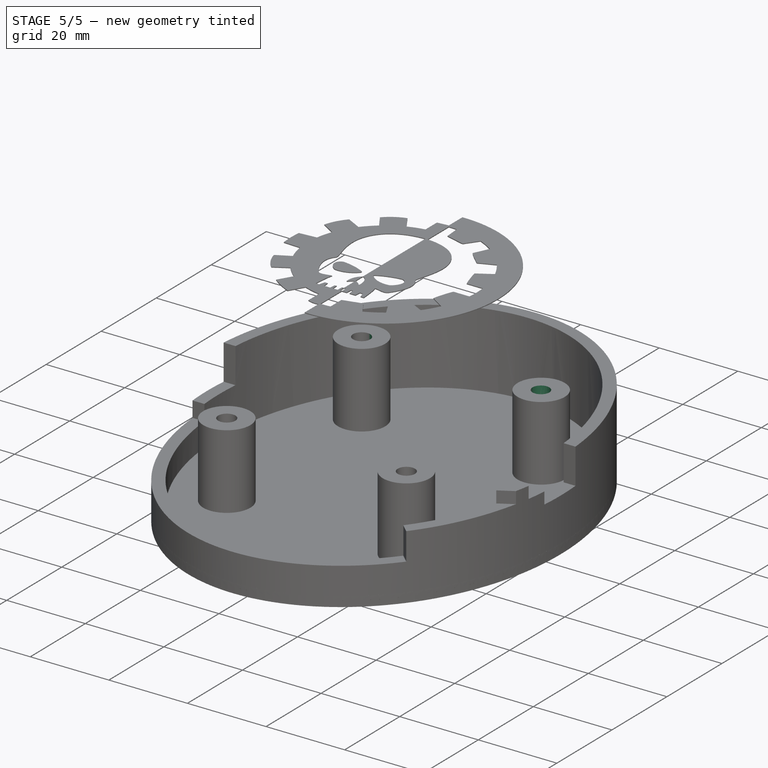
[diagram: stage 5 of 5 — iso view after this stage's code; geometry added in this stage tinted green]
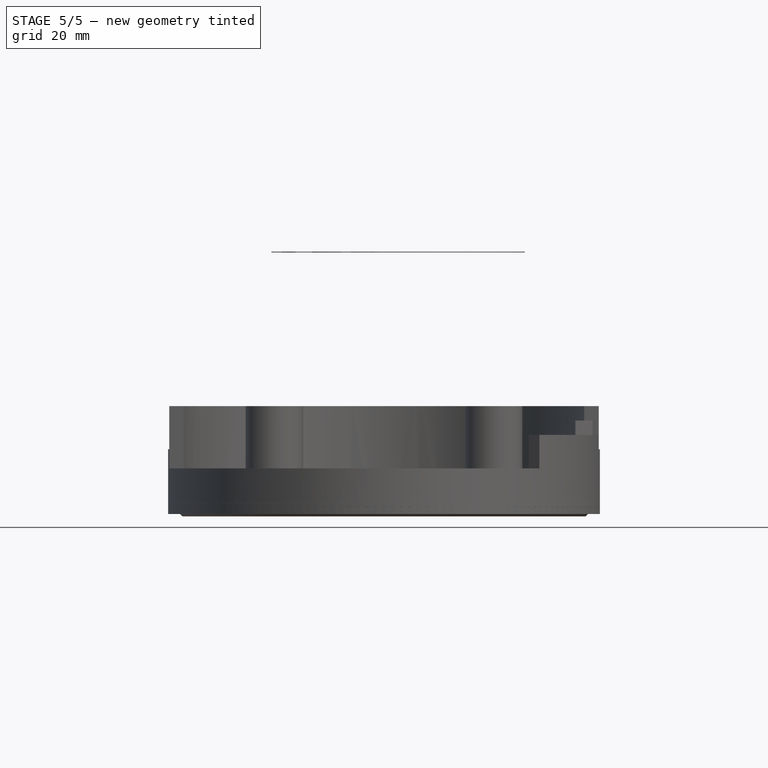
[diagram: stage 5 of 5 — front view after this stage's code; geometry added in this stage tinted green]
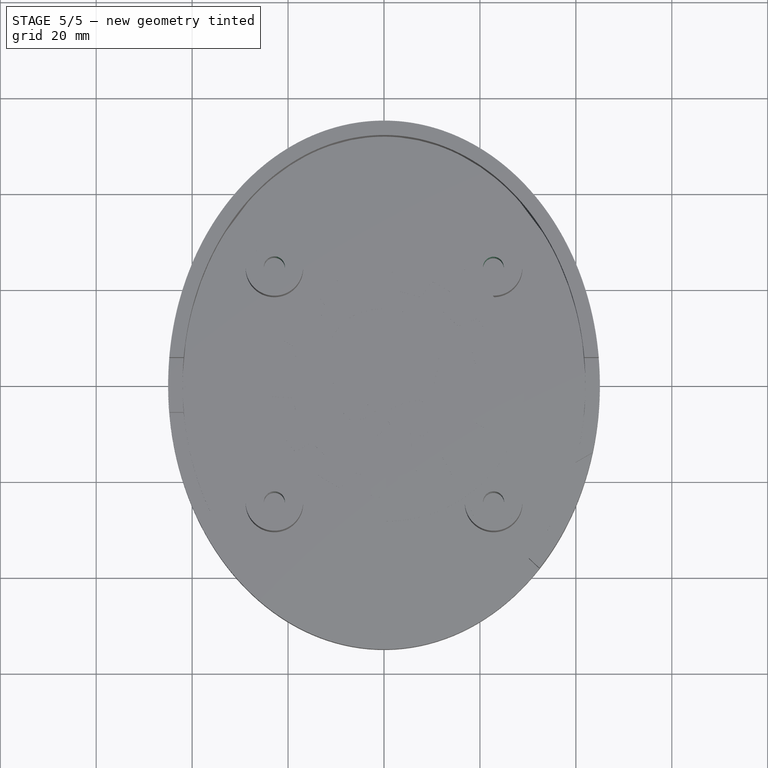
[diagram: stage 5 of 5 — top view after this stage's code; geometry added in this stage tinted green]
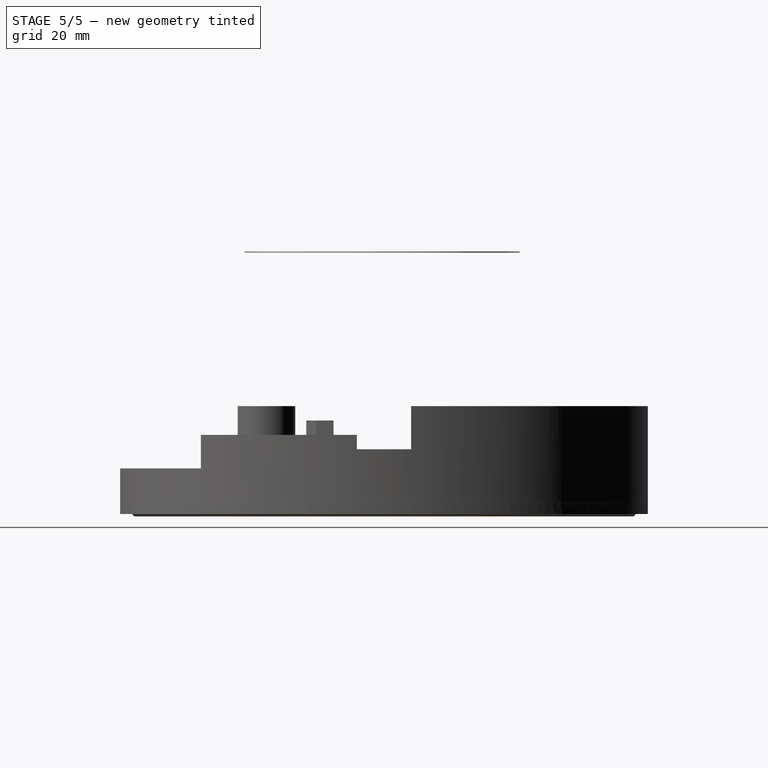
[diagram: stage 5 of 5 — right view after this stage's code; geometry added in this stage tinted green]
FEATURE [Part::Refine] Main_Body_50mm001_solid001  label="main_body_original"
  Placement = pos=(0,0,0) rot=(0,1,0;3.14159rad)
FEATURE [Sketcher::SketchObject] Sketch001
  ArcFitTolerance = 1e-06
  FullyConstrained = false
  MakeInternals = false
  Placement = pos=(0,0,0) rot=(0,0,-1;3.14159rad)
  sketch-geometry (143):
    g0: BSplineCurve PolesCount=4 KnotsCount=2 Degree=3 IsPeriodic=0
    g1: BSplineCurve PolesCount=4 KnotsCount=2 Degree=3 IsPeriodic=0
    g2: BSplineCurve PolesCount=4 KnotsCount=2 Degree=3 IsPeriodic=0
    g3: BSplineCurve PolesCount=4 KnotsCount=2 Degree=3 IsPeriodic=0
    g4: BSplineCurve PolesCount=4 KnotsCount=2 Degree=3 IsPeriodic=0
    g5: BSplineCurve PolesCount=4 KnotsCount=2 Degree=3 IsPeriodic=0
    g6: BSplineCurve PolesCount=4 KnotsCount=2 Degree=3 IsPeriodic=0
    g7: BSplineCurve PolesCount=4 KnotsCount=2 Degree=3 IsPeriodic=0
    g8: BSplineCurve PolesCount=4 KnotsCount=2 Degree=3 IsPeriodic=0
    g9: BSplineCurve PolesCount=4 KnotsCount=2 Degree=3 IsPeriodic=0
    g10: BSplineCurve PolesCount=4 KnotsCount=2 Degree=3 IsPeriodic=0
    g11: BSplineCurve PolesCount=4 KnotsCount=2 Degree=3 IsPeriodic=0
    g12: BSplineCurve PolesCount=2 KnotsCount=2 Degree=1 IsPeriodic=0
    g13: BSplineCurve PolesCount=4 KnotsCount=2 Degree=3 IsPeriodic=0
    g14: BSplineCurve PolesCount=4 KnotsCount=2 Degree=3 IsPeriodic=0
    g15: BSplineCurve PolesCount=4 KnotsCount=2 Degree=3 IsPeriodic=0
    g16: BSplineCurve PolesCount=4 KnotsCount=2 Degree=3 IsPeriodic=0
    g17: BSplineCurve PolesCount=2 KnotsCount=2 Degree=1 IsPeriodic=0
    g18: BSplineCurve PolesCount=4 KnotsCount=2 Degree=3 IsPeriodic=0
    g19: BSplineCurve PolesCount=2 KnotsCount=2 Degree=1 IsPeriodic=0
    g20: BSplineCurve PolesCount=4 KnotsCount=2 Degree=3 IsPeriodic=0
    g21: BSplineCurve PolesCount=2 KnotsCount=2 Degree=1 IsPeriodic=0
    g22: BSplineCurve PolesCount=2 KnotsCount=2 Degree=1 IsPeriodic=0
    g23: BSplineCurve PolesCount=4 KnotsCount=2 Degree=3 IsPeriodic=0
    g24: BSplineCurve PolesCount=4 KnotsCount=2 Degree=3 IsPeriodic=0
    g25: BSplineCurve PolesCount=2 KnotsCount=2 Degree=1 IsPeriodic=0
    g26: BSplineCurve PolesCount=4 KnotsCount=2 Degree=3 IsPeriodic=0
    g27: BSplineCurve PolesCount=4 KnotsCount=2 Degree=3 IsPeriodic=0
    g28: BSplineCurve PolesCount=2 KnotsCount=2 Degree=1 IsPeriodic=0
    g29: BSplineCurve PolesCount=4 KnotsCount=2 Degree=3 IsPeriodic=0
    g30: BSplineCurve PolesCount=4 KnotsCount=2 Degree=3 IsPeriodic=0
    g31: BSplineCurve PolesCount=12 KnotsCount=10 Degree=3 IsPeriodic=0
    g32: BSplineCurve PolesCount=4 KnotsCount=2 Degree=3 IsPeriodic=0
    g33: BSplineCurve PolesCount=4 KnotsCount=2 Degree=3 IsPeriodic=0
    g34: BSplineCurve PolesCount=4 KnotsCount=2 Degree=3 IsPeriodic=0
    g35: BSplineCurve PolesCount=2 KnotsCount=2 Degree=1 IsPeriodic=0
    g36: BSplineCurve PolesCount=4 KnotsCount=2 Degree=3 IsPeriodic=0
    g37: BSplineCurve PolesCount=4 KnotsCount=2 Degree=3 IsPeriodic=0
    g38: BSplineCurve PolesCount=2 KnotsCount=2 Degree=1 IsPeriodic=0
    g39: BSplineCurve PolesCount=4 KnotsCount=2 Degree=3 IsPeriodic=0
    g40: BSplineCurve PolesCount=4 KnotsCount=2 Degree=3 IsPeriodic=0
    g41: BSplineCurve PolesCount=4 KnotsCount=2 Degree=3 IsPeriodic=0
    g42: BSplineCurve PolesCount=2 KnotsCount=2 Degree=1 IsPeriodic=0
    g43: BSplineCurve PolesCount=4 KnotsCount=2 Degree=3 IsPeriodic=0
    g44: BSplineCurve PolesCount=4 KnotsCount=2 Degree=3 IsPeriodic=0
    g45: BSplineCurve PolesCount=2 KnotsCount=2 Degree=1 IsPeriodic=0
    g46: BSplineCurve PolesCount=4 KnotsCount=2 Degree=3 IsPeriodic=0
    g47: BSplineCurve PolesCount=4 KnotsCount=2 Degree=3 IsPeriodic=0
    g48: BSplineCurve PolesCount=2 KnotsCount=2 Degree=1 IsPeriodic=0
    g49: BSplineCurve PolesCount=4 KnotsCount=2 Degree=3 IsPeriodic=0
    g50: BSplineCurve PolesCount=4 KnotsCount=2 Degree=3 IsPeriodic=0
    g51: BSplineCurve PolesCount=4 KnotsCount=2 Degree=3 IsPeriodic=0
    g52: BSplineCurve PolesCount=4 KnotsCount=2 Degree=3 IsPeriodic=0
    g53: BSplineCurve PolesCount=4 KnotsCount=2 Degree=3 IsPeriodic=0
    g54: BSplineCurve PolesCount=4 KnotsCount=2 Degree=3 IsPeriodic=0
    g55: BSplineCurve PolesCount=4 KnotsCount=2 Degree=3 IsPeriodic=0
    g56: BSplineCurve PolesCount=4 KnotsCount=2 Degree=3 IsPeriodic=0
    g57: BSplineCurve PolesCount=4 KnotsCount=2 Degree=3 IsPeriodic=0
    g58: BSplineCurve PolesCount=4 KnotsCount=2 Degree=3 IsPeriodic=0
    g59: BSplineCurve PolesCount=4 KnotsCount=2 Degree=3 IsPeriodic=0
    g60: BSplineCurve PolesCount=4 KnotsCount=2 Degree=3 IsPeriodic=0
    g61: BSplineCurve PolesCount=4 KnotsCount=2 Degree=3 IsPeriodic=0
    g62: BSplineCurve PolesCount=4 KnotsCount=2 Degree=3 IsPeriodic=0
    g63: BSplineCurve PolesCount=4 KnotsCount=2 Degree=3 IsPeriodic=0
    g64: BSplineCurve PolesCount=4 KnotsCount=2 Degree=3 IsPeriodic=0
    g65: BSplineCurve PolesCount=2 KnotsCount=2 Degree=1 IsPeriodic=0
    g66: BSplineCurve PolesCount=2 KnotsCount=2 Degree=1 IsPeriodic=0
    g67: BSplineCurve PolesCount=4 KnotsCount=2 Degree=3 IsPeriodic=0
    g68: BSplineCurve PolesCount=4 KnotsCount=2 Degree=3 IsPeriodic=0
    g69: BSplineCurve PolesCount=4 KnotsCount=2 Degree=3 IsPeriodic=0
    g70: BSplineCurve PolesCount=4 KnotsCount=2 Degree=3 IsPeriodic=0
    g71: BSplineCurve PolesCount=4 KnotsCount=2 Degree=3 IsPeriodic=0
    g72: BSplineCurve PolesCount=4 KnotsCount=2 Degree=3 IsPeriodic=0
    g73: BSplineCurve PolesCount=4 KnotsCount=2 Degree=3 IsPeriodic=0
    g74: BSplineCurve PolesCount=4 KnotsCount=2 Degree=3 IsPeriodic=0
    g75: BSplineCurve PolesCount=4 KnotsCount=2 Degree=3 IsPeriodic=0
    g76: BSplineCurve PolesCount=4 KnotsCount=2 Degree=3 IsPeriodic=0
    g77: BSplineCurve PolesCount=2 KnotsCount=2 Degree=1 IsPeriodic=0
    g78: BSplineCurve PolesCount=2 KnotsCount=2 Degree=1 IsPeriodic=0
    g79: BSplineCurve PolesCount=4 KnotsCount=2 Degree=3 IsPeriodic=0
    g80: BSplineCurve PolesCount=4 KnotsCount=2 Degree=3 IsPeriodic=0
    g81: BSplineCurve PolesCount=4 KnotsCount=2 Degree=3 IsPeriodic=0
    g82: BSplineCurve PolesCount=4 KnotsCount=2 Degree=3 IsPeriodic=0
    g83: BSplineCurve PolesCount=4 KnotsCount=2 Degree=3 IsPeriodic=0
    g84: BSplineCurve PolesCount=4 KnotsCount=2 Degree=3 IsPeriodic=0
    g85: BSplineCurve PolesCount=4 KnotsCount=2 Degree=3 IsPeriodic=0
    g86: BSplineCurve PolesCount=4 KnotsCount=2 Degree=3 IsPeriodic=0
    g87: BSplineCurve PolesCount=4 KnotsCount=2 Degree=3 IsPeriodic=0
    g88: BSplineCurve PolesCount=2 KnotsCount=2 Degree=1 IsPeriodic=0
    g89: BSplineCurve PolesCount=4 KnotsCount=2 Degree=3 IsPeriodic=0
    g90: BSplineCurve PolesCount=4 KnotsCount=2 Degree=3 IsPeriodic=0
    g91: BSplineCurve PolesCount=2 KnotsCount=2 Degree=1 IsPeriodic=0
    g92: BSplineCurve PolesCount=4 KnotsCount=2 Degree=3 IsPeriodic=0
    g93: BSplineCurve PolesCount=2 KnotsCount=2 Degree=1 IsPeriodic=0
    g94: BSplineCurve PolesCount=4 KnotsCount=2 Degree=3 IsPeriodic=0
    g95: BSplineCurve PolesCount=2 KnotsCount=2 Degree=1 IsPeriodic=0
    g96: BSplineCurve PolesCount=4 KnotsCount=2 Degree=3 IsPeriodic=0
    g97: BSplineCurve PolesCount=2 KnotsCount=2 Degree=1 IsPeriodic=0
    g98: BSplineCurve PolesCount=2 KnotsCount=2 Degree=1 IsPeriodic=0
    g99: BSplineCurve PolesCount=2 KnotsCount=2 Degree=1 IsPeriodic=0
    g100: BSplineCurve PolesCount=4 KnotsCount=2 Degree=3 IsPeriodic=0
    g101: BSplineCurve PolesCount=2 KnotsCount=2 Degree=1 IsPeriodic=0
    g102: BSplineCurve PolesCount=4 KnotsCount=2 Degree=3 IsPeriodic=0
    g103: BSplineCurve PolesCount=2 KnotsCount=2 Degree=1 IsPeriodic=0
    g104: BSplineCurve PolesCount=2 KnotsCount=2 Degree=1 IsPeriodic=0
    g105: BSplineCurve PolesCount=2 KnotsCount=2 Degree=1 IsPeriodic=0
    g106: BSplineCurve PolesCount=4 KnotsCount=2 Degree=3 IsPeriodic=0
    g107: BSplineCurve PolesCount=2 KnotsCount=2 Degree=1 IsPeriodic=0
    g108: BSplineCurve PolesCount=4 KnotsCount=2 Degree=3 IsPeriodic=0
    g109: BSplineCurve PolesCount=2 KnotsCount=2 Degree=1 IsPeriodic=0
    g110: BSplineCurve PolesCount=4 KnotsCount=2 Degree=3 IsPeriodic=0
    g111: BSplineCurve PolesCount=2 KnotsCount=2 Degree=1 IsPeriodic=0
    g112: BSplineCurve PolesCount=4 KnotsCount=2 Degree=3 IsPeriodic=0
    g113: BSplineCurve PolesCount=2 KnotsCount=2 Degree=1 IsPeriodic=0
    g114: BSplineCurve PolesCount=12 KnotsCount=10 Degree=3 IsPeriodic=0
    g115: BSplineCurve PolesCount=2 KnotsCount=2 Degree=1 IsPeriodic=0
    g116: BSplineCurve PolesCount=2 KnotsCount=2 Degree=1 IsPeriodic=0
    g117: BSplineCurve PolesCount=12 KnotsCount=10 Degree=3 IsPeriodic=0
    g118: BSplineCurve PolesCount=2 KnotsCount=2 Degree=1 IsPeriodic=0
    g119: BSplineCurve PolesCount=4 KnotsCount=2 Degree=3 IsPeriodic=0
    g120: BSplineCurve PolesCount=2 KnotsCount=2 Degree=1 IsPeriodic=0
    g121: BSplineCurve PolesCount=4 KnotsCount=2 Degree=3 IsPeriodic=0
    g122: BSplineCurve PolesCount=2 KnotsCount=2 Degree=1 IsPeriodic=0
    g123: BSplineCurve PolesCount=4 KnotsCount=2 Degree=3 IsPeriodic=0
    g124: BSplineCurve PolesCount=2 KnotsCount=2 Degree=1 IsPeriodic=0
    g125: BSplineCurve PolesCount=4 KnotsCount=2 Degree=3 IsPeriodic=0
    g126: BSplineCurve PolesCount=2 KnotsCount=2 Degree=1 IsPeriodic=0
    g127: BSplineCurve PolesCount=12 KnotsCount=10 Degree=3 IsPeriodic=0
    g128: BSplineCurve PolesCount=2 KnotsCount=2 Degree=1 IsPeriodic=0
    g129: BSplineCurve PolesCount=2 KnotsCount=2 Degree=1 IsPeriodic=0
    g130: BSplineCurve PolesCount=2 KnotsCount=2 Degree=1 IsPeriodic=0
    g131: BSplineCurve PolesCount=2 KnotsCount=2 Degree=1 IsPeriodic=0
    g132: BSplineCurve PolesCount=2 KnotsCount=2 Degree=1 IsPeriodic=0
    g133: BSplineCurve PolesCount=4 KnotsCount=2 Degree=3 IsPeriodic=0
    g134: BSplineCurve PolesCount=2 KnotsCount=2 Degree=1 IsPeriodic=0
    g135: BSplineCurve PolesCount=4 KnotsCount=2 Degree=3 IsPeriodic=0
    g136: BSplineCurve PolesCount=2 KnotsCount=2 Degree=1 IsPeriodic=0
    g137: BSplineCurve PolesCount=4 KnotsCount=2 Degree=3 IsPeriodic=0
    g138: BSplineCurve PolesCount=2 KnotsCount=2 Degree=1 IsPeriodic=0
    g139: BSplineCurve PolesCount=4 KnotsCount=2 Degree=3 IsPeriodic=0
    g140: BSplineCurve PolesCount=4 KnotsCount=2 Degree=3 IsPeriodic=0
    g141: BSplineCurve PolesCount=4 KnotsCount=2 Degree=3 IsPeriodic=0
    g142: BSplineCurve PolesCount=4 KnotsCount=2 Degree=3 IsPeriodic=0
  constraints (143):
    c: Coincident(g16,g18)
    c: Coincident(g68,g70)
    c: Coincident(g70,g72)
    c: Coincident(g66,g68)
    c: Coincident(g78,g80)
    c: Coincident(g61,g63)
    c: Coincident(g64,g66)
    c: Coincident(g72,g74)
    c: Coincident(g80,g82)
    c: Coincident(g63,g65)
    c: Coincident(g62,g64)
    c: Coincident(g74,g76)
    c: Coincident(g76,g78)
    c: Coincident(g61,g62)
    c: Coincident(g65,g67)
    c: Coincident(g82,g84)
    c: Coincident(g73,g75)
    c: Coincident(g84,g86)
    c: Coincident(g88,g90)
    c: Coincident(g67,g69)
    c: Coincident(g71,g73)
    c: Coincident(g86,g88)
    c: Coincident(g69,g71)
    c: Coincident(g106,g108)
    c: Coincident(g108,g110)
    c: Coincident(g90,g92)
    c: Coincident(g75,g77)
    c: Coincident(g110,g112)
    c: Coincident(g56,g57)
    c: Coincident(g92,g94)
    c: Coincident(g77,g79)
    c: Coincident(g57,g58)
    c: Coincident(g58,g59)
    c: Coincident(g55,g56)
    c: Coincident(g54,g55)
    c: Coincident(g114,g116)
    c: Coincident(g112,g114)
    c: Coincident(g116,g118)
    c: Coincident(g79,g81)
    c: Coincident(g94,g96)
    c: Coincident(g118,g120)
    c: Coincident(g59,g60)
    c: Coincident(g120,g122)
    c: Coincident(g122,g124)
    c: Coincident(g53,g54)
    c: Coincident(g96,g98)
    c: Coincident(g81,g83)
    c: Coincident(g83,g85)
    c: Coincident(g98,g100)
    c: Coincident(g124,g126)
    c: Coincident(g126,g128)
    c: Coincident(g128,g130)
    c: Coincident(g130,g132)
    c: Coincident(g52,g60)
    c: Coincident(g137,g139)
    c: Coincident(g52,g53)
    c: Coincident(g139,g141)
    c: Coincident(g141,g142)
    c: Coincident(g15,g16)
    c: Coincident(g18,g20)
    c: Coincident(g100,g102)
    c: Coincident(g85,g87)
    c: Coincident(g135,g137)
    c: Coincident(g102,g104)
    c: Coincident(g104,g106)
    c: Coincident(g132,g134)
    c: Coincident(g134,g136)
    c: Coincident(g89,g91)
    c: Coincident(g87,g89)
    c: Coincident(g15,g17)
    c: Coincident(g17,g19)
    c: Coincident(g22,g24)
    c: Coincident(g20,g22)
    c: Coincident(g133,g135)
    c: Coincident(g140,g142)
    c: Coincident(g24,g26)
    c: Coincident(g129,g131)
    c: Coincident(g131,g133)
    c: Coincident(g138,g140)
    c: Coincident(g136,g138)
    c: Coincident(g127,g129)
    c: Coincident(g12,g13)
    c: Coincident(g11,g12)
    c: Coincident(g93,g95)
    c: Coincident(g91,g93)
    c: Coincident(g13,g14)
    c: Coincident(g95,g97)
    c: Coincident(g97,g99)
    c: Coincident(g125,g127)
    c: Coincident(g10,g11)
    c: Coincident(g9,g10)
    c: Coincident(g9,g14)
    c: Coincident(g7,g8)
    c: Coincident(g0,g8)
    c: Coincident(g99,g101)
    c: Coincident(g101,g103)
    c: Coincident(g103,g105)
    c: Coincident(g105,g107)
    c: Coincident(g28,g30)
    c: Coincident(g26,g28)
    c: Coincident(g19,g21)
    c: Coincident(g21,g23)
    c: Coincident(g6,g7)
    c: Coincident(g107,g109)
    c: Coincident(g109,g111)
    c: Coincident(g0,g1)
    c: Coincident(g111,g113)
    c: Coincident(g113,g115)
    c: Coincident(g117,g119)
    c: Coincident(g115,g117)
    c: Coincident(g23,g25)
    c: Coincident(g30,g32)
    c: Coincident(g5,g6)
    c: Coincident(g4,g5)
    c: Coincident(g1,g2)
    c: Coincident(g2,g3)
    c: Coincident(g3,g4)
    c: Coincident(g119,g121)
    c: Coincident(g25,g27)
    c: Coincident(g32,g34)
    c: Coincident(g121,g123)
    c: Coincident(g123,g125)
    c: Coincident(g27,g29)
    c: Coincident(g31,g33)
    c: Coincident(g38,g40)
    c: Coincident(g34,g36)
    c: Coincident(g29,g31)
    c: Coincident(g36,g38)
    c: Coincident(g33,g35)
    c: Coincident(g40,g42)
    c: Coincident(g48,g50)
    c: Coincident(g41,g43)
    c: Coincident(g42,g44)
    c: Coincident(g35,g37)
    c: Coincident(g43,g45)
    c: Coincident(g50,g51)
    c: Coincident(g37,g39)
    c: Coincident(g44,g46)
    c: Coincident(g39,g41)
    c: Coincident(g46,g48)
    c: Coincident(g45,g47)
    c: Coincident(g49,g51)
    c: Coincident(g47,g49)
FEATURE [PartDesign::Pad] Pad
  Direction = (0,0,1)
  Length = 0.2
  Length2 = 10
  Placement = pos=(0,0,0) rot=(0,0,-1;3.14159rad)
  Profile = -> Sketch001
  ReferenceAxis = -> Sketch001 [N_Axis]
  Refine = true
  Suppressed = false
  Type = 0
FEATURE [PartDesign::Body] Body003  label="subtract"
  AllowCompound = false
  Group = -> [Binder002,Sketch006,Pad003]
  Origin = -> Origin010
  Tip = -> Pad003
FEATURE [Part::Cut] Cut001  label="shel_ring"
  Base = -> Closed_Shell_Left001_solid004
  Refine = true
  Tool = -> Body003
FEATURE [Part::Refine] _50mm_Pad_Mount_NG002_solid001  label="pad_mount_50mm"
  Placement = pos=(100,0,-26) rot=(0,1,0;3.14159rad)
FEATURE [Part::Refine] Left_Cable_Cover001_solid001  label="left_cable_cover"
  Placement = pos=(-19,50,-36) rot=(0,0,1;0rad)
FEATURE [PartDesign::SubShapeBinder] Binder005
  BindCopyOnChange = 0
  BindMode = 0
  ClaimChildren = false
  Fuse = false
  MakeFace = true
  OffsetFill = false
  OffsetIntersection = false
  OffsetJoinType = 0
  OffsetOpenResult = false
  PartialLoad = false
  Refine = true
  Relative = true
  Support = -> [Cut001[Face548]]
  _Version = 2
FEATURE [Sketcher::SketchObject] Sketch008
  ArcFitTolerance = 1e-06
  ExternalGeometry = -> [Binder005]
  FullyConstrained = false
  MakeInternals = false
  MapMode = 5
  Placement = pos=(0,0,-54) rot=(1,0,0;3.14159rad)
  sketch-geometry (9):
    g0: Ellipse CenterX=0 CenterY=0 CenterZ=0 NormalX=0 NormalY=0 NormalZ=1 MajorRadius=52.9988 MinorRadius=42.9993 AngleXU=-1.5708
    g1: LineSegment [constr] StartX=0 StartY=-52.9988 StartZ=0 EndX=0 EndY=52.9988 EndZ=0
    g2: LineSegment [constr] StartX=42.9993 StartY=0 StartZ=0 EndX=-42.9993 EndY=0 EndZ=0
    g3: GeomPoint [constr] X=3.4e-15 Y=-30.9828 Z=0
    g4: GeomPoint [constr] X=0 Y=30.9828 Z=0
    g5: GeomPoint [constr] X=-40.0002 Y=0 Z=0
    g6: GeomPoint [constr] X=0 Y=-49.9997 Z=0
    g7: LineSegment [constr] StartX=0 StartY=-52.9988 StartZ=0 EndX=0 EndY=-49.9997 EndZ=0
    g8: LineSegment [constr] StartX=-40.0002 StartY=0 StartZ=0 EndX=-42.9993 EndY=0 EndZ=0
  constraints (12):
    c: InternalAlignment(g1-g4 -> g0) x4
    c: Coincident(g0,g-1)
    c: PointOnObject(g2,g-1)
    c: PointOnObject(g5,g-3)
    c: PointOnObject(g5,g-1)
    c: PointOnObject(g6,g-2)
    c: PointOnObject(g6,g-3)
    c: Coincident(g7,g1)
    c: Coincident(g7,g6)
    c: Coincident(g8,g5)
    c: Coincident(g8,g2)
    c: Equal(g8,g7)
FEATURE [PartDesign::Pad] Pad005
  Direction = (0,0,-1)
  Length = 1
  Length2 = 10
  Placement = pos=(0,0,-54) rot=(1,0,0;3.14159rad)
  Profile = -> Sketch008
  ReferenceAxis = -> Sketch008 [N_Axis]
  Refine = true
  Suppressed = false
  Type = 0
FEATURE [PartDesign::Chamfer] Chamfer
  Angle = 45
  Base = -> Pad005 [Edge3]
  BaseFeature = -> Pad005
  ChamferType = 0
  FlipDirection = false
  Placement = pos=(0,0,-54) rot=(1,0,0;3.14159rad)
  Refine = true
  Size = 0.99
  Size2 = 1
  SupportTransform = false
  Suppressed = false
  UseAllEdges = false
FEATURE [PartDesign::SubShapeBinder] Binder006
  BindCopyOnChange = 0
  BindMode = 0
  ClaimChildren = false
  Context = -> Body005 [Binder006.]
  Fuse = false
  MakeFace = true
  OffsetFill = false
  OffsetIntersection = false
  OffsetJoinType = 0
  OffsetOpenResult = false
  PartialLoad = false
  Refine = true
  Relative = true
  _Version = 2
FEATURE [Sketcher::SketchObject] Sketch009
  ArcFitTolerance = 1e-06
  AttachmentSupport = -> [Chamfer]
  FullyConstrained = false
  MakeInternals = false
  MapMode = 5
  Placement = pos=(0,0,-54) rot=(0,0,1;0rad)
  sketch-geometry (11):
    g0: Circle CenterX=22.8046 CenterY=24.4594 CenterZ=0 NormalX=0 NormalY=0 NormalZ=1 AngleXU=0 Radius=2.15056
    g1: Circle CenterX=22.8046 CenterY=24.4594 CenterZ=0 NormalX=0 NormalY=0 NormalZ=1 AngleXU=0 Radius=5
    g2: Circle CenterX=-22.8954 CenterY=24.4594 CenterZ=0 NormalX=0 NormalY=0 NormalZ=1 AngleXU=0 Radius=2.25
    g3: Circle CenterX=-22.8954 CenterY=24.4594 CenterZ=0 NormalX=0 NormalY=0 NormalZ=1 AngleXU=0 Radius=5
    g4: LineSegment [constr] StartX=-22.8954 StartY=24.4594 StartZ=0 EndX=22.8046 EndY=24.4594 EndZ=0
    g5: LineSegment [constr] StartX=22.8046 StartY=24.4594 StartZ=0 EndX=22.8046 EndY=-24.5143 EndZ=0
    g6: Circle CenterX=22.8046 CenterY=-24.5143 CenterZ=0 NormalX=0 NormalY=0 NormalZ=1 AngleXU=0 Radius=2.25
    g7: Circle CenterX=22.8046 CenterY=-24.5143 CenterZ=0 NormalX=0 NormalY=0 NormalZ=1 AngleXU=0 Radius=5
    g8: LineSegment [constr] StartX=22.8046 StartY=-24.5143 StartZ=0 EndX=-22.8954 EndY=-24.5143 EndZ=0
    g9: Circle CenterX=-22.8954 CenterY=-24.5143 CenterZ=0 NormalX=0 NormalY=0 NormalZ=1 AngleXU=0 Radius=2.25
    g10: Circle CenterX=-22.8954 CenterY=-24.5143 CenterZ=0 NormalX=0 NormalY=0 NormalZ=1 AngleXU=0 Radius=5
  constraints (22):
    c: Coincident(g1,g0)
    c: Coincident(g3,g2)
    c: Coincident(g4,g2)
    c: Coincident(g4,g0)
    c: Horizontal(g4)
    c: DistanceX(g4,g4) = 45.7
    c: Diameter(g2) = 4.5
    c: Coincident(g5,g0)
    c: Vertical(g5)
    c: Diameter(g6) = 4.5
    c: Coincident(g6,g5)
    c: Coincident(g7,g5)
    c: Coincident(g8,g5)
    c: Horizontal(g8)
    c: Equal(g4,g8)
    c: Diameter(g9) = 4.5
    c: Coincident(g9,g8)
    c: Coincident(g10,g8)
    c: Equal(g10,g7)
    c: Equal(g7,g1)
    c: Equal(g1,g3)
    c: Diameter(g1) = 10
FEATURE [PartDesign::Pad] Pad006
  BaseFeature = -> Chamfer
  Direction = (0,0,1)
  Length = 21
  Length2 = 10
  Placement = pos=(0,0,-54) rot=(1,0,0;3.14159rad)
  Profile = -> Sketch009
  ReferenceAxis = -> Sketch009 [N_Axis]
  Refine = true
  Suppressed = false
  Type = 3
  UpToFace = -> Binder006 [Face1]
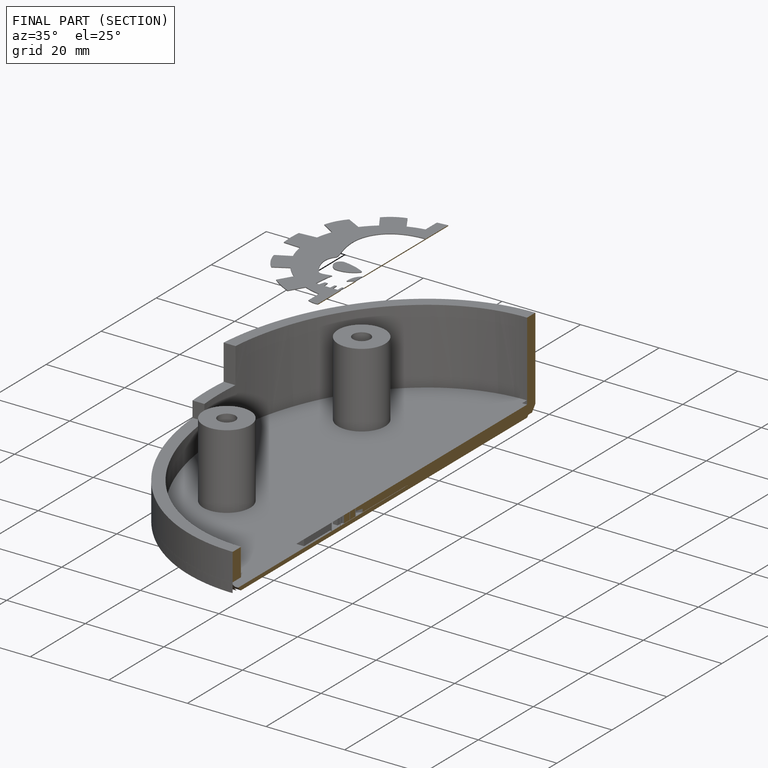
[diagram: finished part — half-section view (interior)]
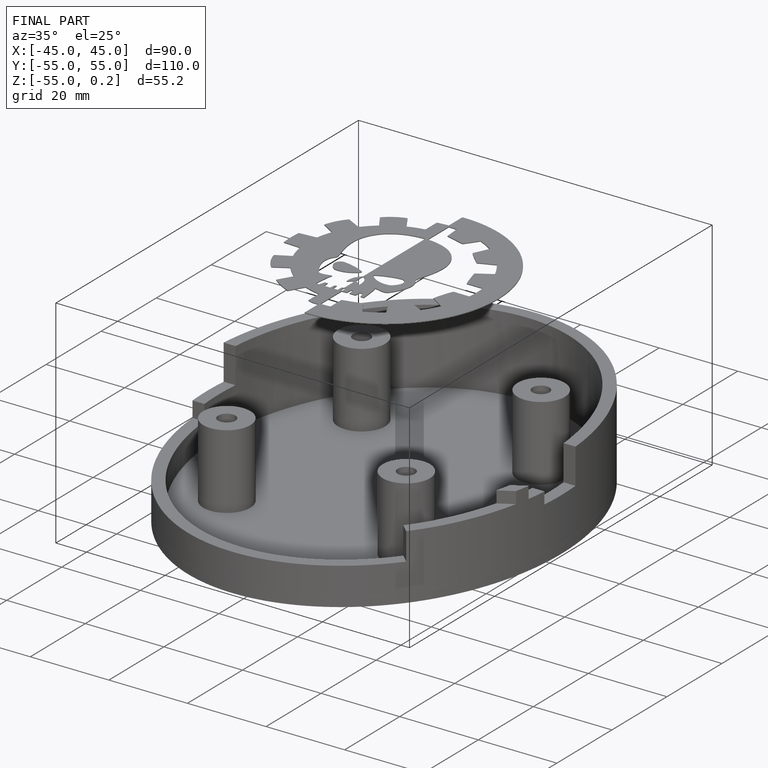
[diagram: finished part — iso view with bounding-box wireframe]
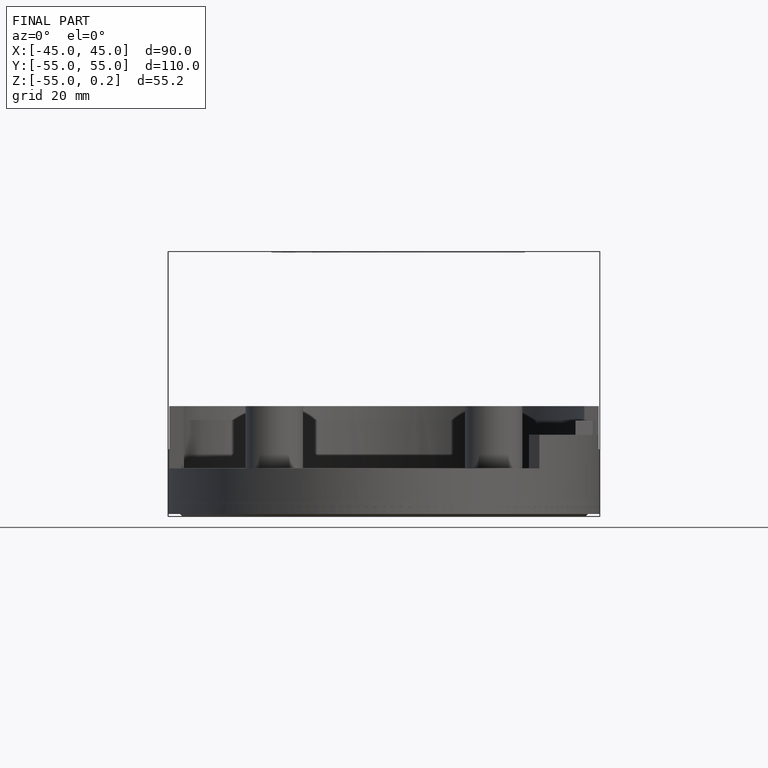
[diagram: finished part — front view with bounding-box wireframe]
